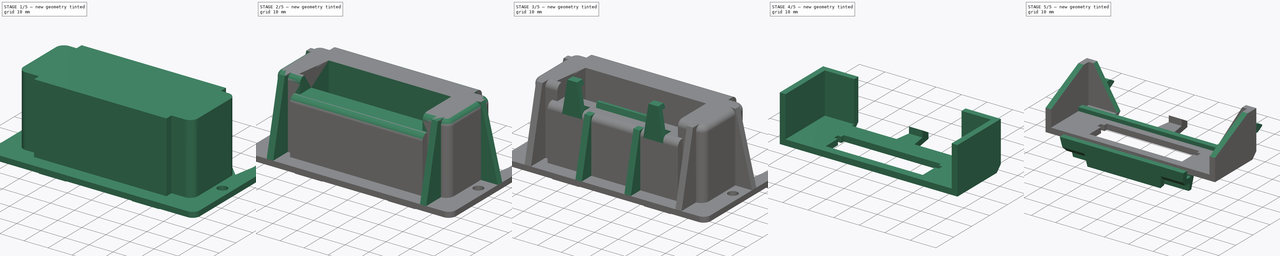
[diagram: build sequence overview — one tinted view per stage of 5, left to right]
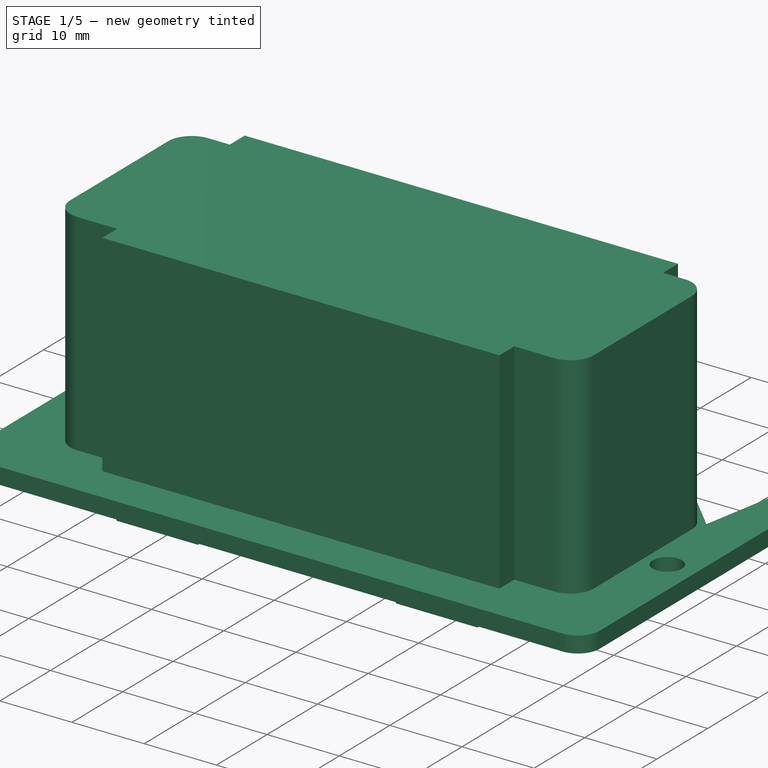
[diagram: stage 1 of 5 — iso view after this stage's code; geometry added in this stage tinted green]
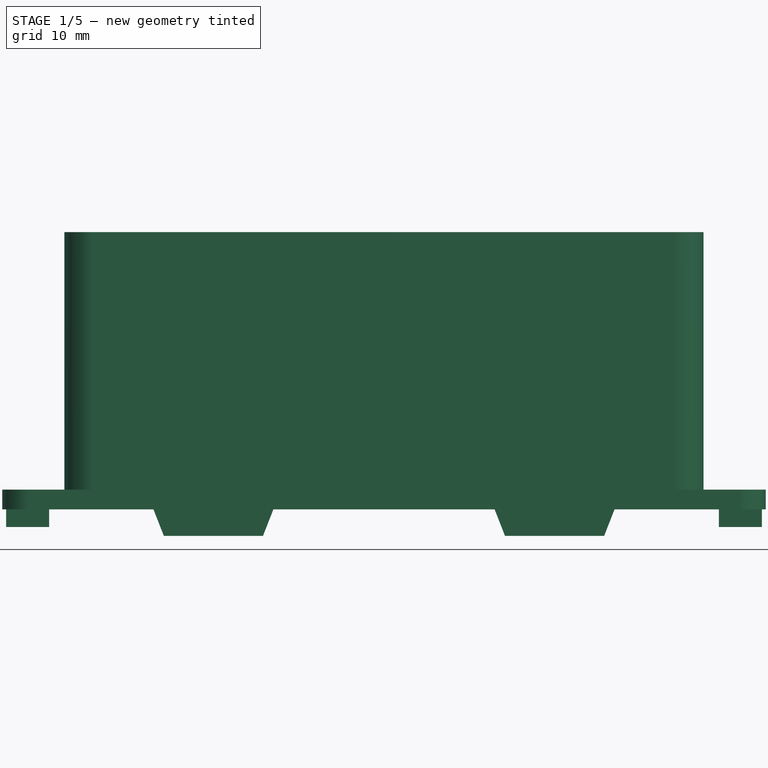
[diagram: stage 1 of 5 — front view after this stage's code; geometry added in this stage tinted green]
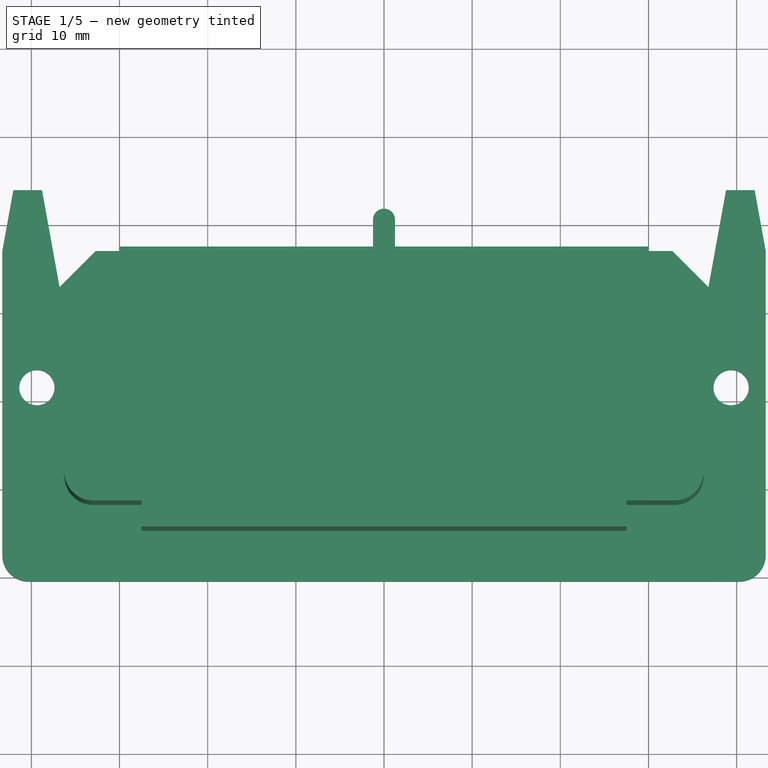
[diagram: stage 1 of 5 — top view after this stage's code; geometry added in this stage tinted green]
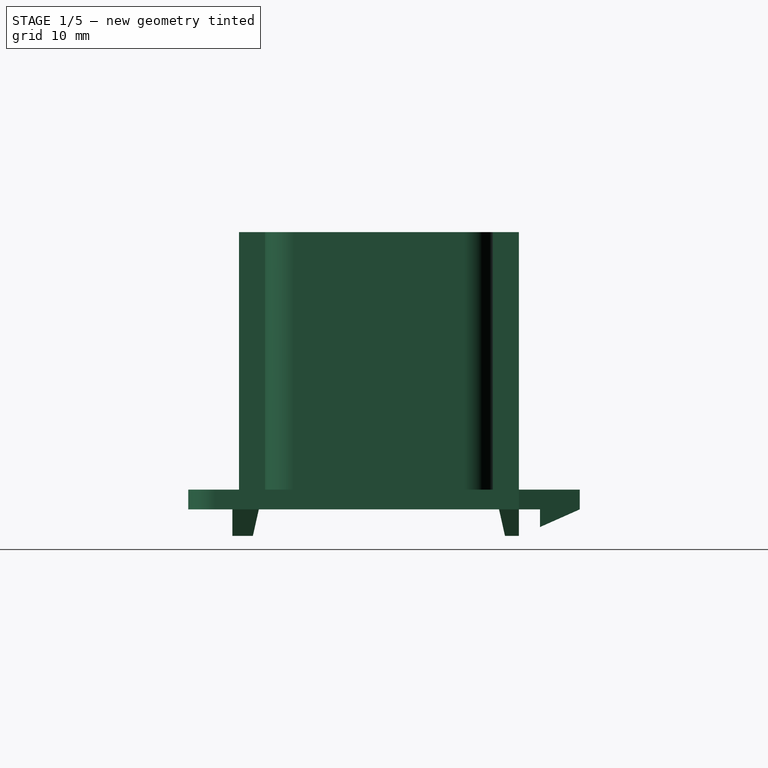
[diagram: stage 1 of 5 — right view after this stage's code; geometry added in this stage tinted green]
FCSTD DOCUMENT  (FreeCAD 1.0R38806 (Git))
Label: CartridgePort1200XL
License: Creative Commons Attribution 4.0
LicenseURL: https://creativecommons.org/licenses/by/4.0/
objects: Sketcher::SketchObject×35, PartDesign::Pad×26, PartDesign::Pocket×15, PartDesign::SubShapeBinder×8, PartDesign::Fillet×2, PartDesign::Body×2, App::Part×2
note: 209 computed .brp shape members not serialized (recipe doc carries the construction recipe); baked Part::Feature solids carry a one-line shape summary decoded from their .brp

FEATURE [Sketcher::SketchObject] Sketch
  ArcFitTolerance = 1e-06
  AttachmentSupport = -> [XY_Plane001]
  FullyConstrained = true
  MakeInternals = false
  MapMode = 5
  sketch-geometry (25):
    g0: LineSegment StartX=-43.3 StartY=-17.5 StartZ=0 EndX=-43.3 EndY=17 EndZ=0
    g1: LineSegment StartX=-43.3 StartY=17 StartZ=0 EndX=-42.0473 EndY=23.9 EndZ=0
    g2: LineSegment StartX=-42.0473 StartY=23.9 StartZ=0 EndX=-38.7973 EndY=23.9 EndZ=0
    g3: LineSegment StartX=-38.7973 StartY=23.9 StartZ=0 EndX=-36.8 EndY=12.8988 EndZ=0
    g4: LineSegment StartX=-36.8 StartY=12.8988 StartZ=0 EndX=-32.6988 EndY=17 EndZ=0
    g5: LineSegment StartX=-32.6988 StartY=17 StartZ=0 EndX=-1.25 EndY=17 EndZ=0
    g6: LineSegment StartX=-1.25 StartY=17 StartZ=0 EndX=-1.25 EndY=20.55 EndZ=0
    g7: ArcOfCircle CenterX=-5.23e-14 CenterY=20.55 CenterZ=0 NormalX=0 NormalY=0 NormalZ=1 AngleXU=0 Radius=1.25 StartAngle=5e-16 EndAngle=3.14159
    g8: LineSegment StartX=1.25 StartY=20.55 StartZ=0 EndX=1.25 EndY=17 EndZ=0
    g9: LineSegment StartX=1.25 StartY=17 StartZ=0 EndX=32.6988 EndY=17 EndZ=0
    g10: LineSegment StartX=32.6988 StartY=17 StartZ=0 EndX=36.8 EndY=12.8988 EndZ=0
    g11: LineSegment StartX=36.8 StartY=12.8988 StartZ=0 EndX=38.7973 EndY=23.9 EndZ=0
    g12: LineSegment StartX=38.7973 StartY=23.9 StartZ=0 EndX=42.0473 EndY=23.9 EndZ=0
    g13: LineSegment StartX=42.0473 StartY=23.9 StartZ=0 EndX=43.3 EndY=17 EndZ=0
    g14: LineSegment StartX=43.3 StartY=17 StartZ=0 EndX=43.3 EndY=-17.5 EndZ=0
    g15: ArcOfCircle CenterX=40.3 CenterY=-17.5 CenterZ=0 NormalX=0 NormalY=0 NormalZ=1 AngleXU=0 Radius=3 StartAngle=4.71239 EndAngle=6.28319
    g16: LineSegment StartX=40.3 StartY=-20.5 StartZ=0 EndX=-40.3 EndY=-20.5 EndZ=0
    g17: ArcOfCircle CenterX=-40.3 CenterY=-17.5 CenterZ=0 NormalX=0 NormalY=0 NormalZ=1 AngleXU=0 Radius=3 StartAngle=3.14159 EndAngle=4.71239
    g18: Circle CenterX=-39.375 CenterY=1.5 CenterZ=0 NormalX=0 NormalY=0 NormalZ=1 AngleXU=0 Radius=2
    g19: Circle CenterX=39.375 CenterY=1.5 CenterZ=0 NormalX=0 NormalY=0 NormalZ=1 AngleXU=0 Radius=2
    g20: GeomPoint X=0 Y=21.8 Z=0
    g21: GeomPoint X=-40.4223 Y=23.9 Z=0
    g22: GeomPoint X=-37.5446 Y=17 Z=0
    g23: GeomPoint X=-40.4223 Y=17 Z=0
    g24: LineSegment [constr] StartX=-40.4223 StartY=23.9 StartZ=0 EndX=-40.4223 EndY=17 EndZ=0
  constraints (66):
    c: Vertical(g0)
    c: Coincident(g0,g1)
    c: Coincident(g1,g2)
    c: Horizontal(g2)
    c: Coincident(g2,g3)
    c: Coincident(g3,g4)
    c: Coincident(g4,g5)
    c: Horizontal(g5)
    c: Coincident(g5,g6)
    c: Vertical(g6)
    c: Tangent(g6,g7) = 1.5708
    c: Coincident(g7,g8)
    c: Vertical(g8)
    c: Coincident(g8,g9)
    c: Horizontal(g9)
    c: Coincident(g9,g10)
    c: Coincident(g10,g11)
    c: Coincident(g11,g12)
    c: Horizontal(g12)
    c: Coincident(g12,g13)
    c: Coincident(g13,g14)
    c: Vertical(g14)
    c: Tangent(g14,g15) = 1.5708
    c: Coincident(g15,g16)
    c: Horizontal(g16)
    c: Tangent(g16,g17) = 1.5708
    c: Coincident(g17,g0)
    c: Horizontal(g7,g7)
    c: Horizontal(g5,g8)
    c: Horizontal(g2,g11)
    c: Horizontal(g3,g10)
    c: Horizontal(g0,g14)
    c: Horizontal(g0,g17)
    c: Vertical(g15,g15)
    c: Equal(g18,g19)
    c: Equal(g2,g12)
    c: Equal(g4,g10)
    c: Equal(g3,g11)
    c: Equal(g1,g13)
    c: Equal(g5,g9)
    c: Symmetric(g18,g19,g-2)
    c: Angle(g10,g-1) = 0.785398
    c: Distance(g2,g2) = 3.25
    c: Radius(g17) = 3
    c: Diameter(g18) = 4
    c: DistanceY(g16,g4) = 37.5
    c: Horizontal(g13,g9)
    c: Distance(g5,g8) = 2.5
    c: PointOnObject(g20,g7)
    c: PointOnObject(g20,g-2)
    c: DistanceY(g8,g20) = 4.8
    c: DistanceY(g15,g12) = 44.4
    c: Distance(g10) = 5.8
    c: DistanceX(g0,g14) = 86.6
    c: Symmetric(g0,g13,g-2)
    c: DistanceY(g15,g-1) = 20.5
    c: Symmetric(g2,g2,g21)
    c: PointOnObject(g22,g3)
    c: PointOnObject(g22,g5)
    c: Symmetric(g0,g22,g23)
    c: Coincident(g24,g21)
    c: Coincident(g24,g23)
    c: Vertical(g24)
    c: DistanceX(g0,g3) = 6.5
    c: DistanceX(g18,g19) = 78.75
    c: DistanceY(g15,g19) = 22
FEATURE [PartDesign::Pad] Pad
  Direction = (0,0,1)
  Length = 2.25
  Length2 = 10
  Profile = -> Sketch
  ReferenceAxis = -> Sketch [N_Axis]
  Suppressed = false
  Type = 0
FEATURE [Sketcher::SketchObject] Sketch001
  ArcFitTolerance = 1e-06
  AttachmentSupport = -> [Pad]
  ExternalGeometry = -> [Pad]
  FullyConstrained = true
  MakeInternals = false
  MapMode = 5
  Placement = pos=(0,0,0) rot=(1,0,0;3.14159rad)
  sketch-geometry (16):
    g0: LineSegment StartX=-34.5 StartY=8.55 StartZ=0 EndX=-34.5 EndY=-10.8 EndZ=0
    g1: ArcOfCircle CenterX=-33 CenterY=-10.8 CenterZ=0 NormalX=0 NormalY=0 NormalZ=1 AngleXU=0 Radius=1.5 StartAngle=3.14159 EndAngle=4.71239
    g2: LineSegment StartX=-33 StartY=-12.3 StartZ=0 EndX=-28.55 EndY=-12.3 EndZ=0
    g3: LineSegment StartX=-28.55 StartY=-12.3 StartZ=0 EndX=-28.55 EndY=-14.75 EndZ=0
    g4: LineSegment StartX=-28.55 StartY=-14.75 StartZ=0 EndX=28.55 EndY=-14.75 EndZ=0
    g5: LineSegment StartX=28.55 StartY=-14.75 StartZ=0 EndX=28.55 EndY=-12.3 EndZ=0
    g6: LineSegment StartX=28.55 StartY=-12.3 StartZ=0 EndX=33 EndY=-12.3 EndZ=0
    g7: ArcOfCircle CenterX=33 CenterY=-10.8 CenterZ=0 NormalX=0 NormalY=0 NormalZ=1 AngleXU=0 Radius=1.5 StartAngle=4.71239 EndAngle=6.28319
    g8: LineSegment StartX=34.5 StartY=-10.8 StartZ=0 EndX=34.5 EndY=8.55 EndZ=0
    g9: ArcOfCircle CenterX=33 CenterY=8.55 CenterZ=0 NormalX=0 NormalY=0 NormalZ=1 AngleXU=0 Radius=1.5 StartAngle=5e-16 EndAngle=1.5708
    g10: LineSegment StartX=33 StartY=10.05 StartZ=0 EndX=26.6 EndY=10.05 EndZ=0
    g11: LineSegment StartX=26.6 StartY=10.05 StartZ=0 EndX=26.6 EndY=12.5 EndZ=0
    g12: LineSegment StartX=26.6 StartY=12.5 StartZ=0 EndX=-26.6 EndY=12.5 EndZ=0
    g13: LineSegment StartX=-26.6 StartY=12.5 StartZ=0 EndX=-26.6 EndY=10.05 EndZ=0
    g14: LineSegment StartX=-26.6 StartY=10.05 StartZ=0 EndX=-33 EndY=10.05 EndZ=0
    g15: ArcOfCircle CenterX=-33 CenterY=8.55 CenterZ=0 NormalX=0 NormalY=0 NormalZ=1 AngleXU=0 Radius=1.5 StartAngle=1.5708 EndAngle=3.14159
  constraints (44):
    c: Vertical(g0)
    c: Tangent(g0,g1) = -1.5708
    c: Tangent(g1,g2) = -1.5708
    c: Coincident(g2,g3)
    c: Vertical(g3)
    c: Coincident(g3,g4)
    c: Coincident(g4,g5)
    c: Vertical(g5)
    c: Coincident(g5,g6)
    c: Horizontal(g6)
    c: Tangent(g6,g7) = -1.5708
    c: Coincident(g7,g8)
    c: Vertical(g8)
    c: Tangent(g8,g9) = -1.5708
    c: Coincident(g9,g10)
    c: Horizontal(g10)
    c: Coincident(g10,g11)
    c: Vertical(g11)
    c: Coincident(g11,g12)
    c: Coincident(g12,g13)
    c: Vertical(g13)
    c: Coincident(g13,g14)
    c: Horizontal(g14)
    c: Tangent(g14,g15) = -1.5708
    c: Coincident(g15,g0)
    c: Equal(g15,g1)
    c: Equal(g1,g7)
    c: Equal(g7,g9)
    c: Horizontal(g2)
    c: Symmetric(g12,g11,g-2)
    c: Symmetric(g0,g8,g-2)
    c: Horizontal(g4)
    c: Symmetric(g2,g5,g-2)
    c: Radius(g1) = 1.5
    c: DistanceY(g3,g12) = 27.25
    c: Vertical(g9,g9)
    c: Horizontal(g15,g0)
    c: Horizontal(g7,g7)
    c: DistanceX(g0,g8) = 69
    c: DistanceY(g3,g13) = 24.8
    c: Equal(g13,g3)
    c: DistanceX(g12,g12) = 53.2
    c: DistanceX(g4,g4) = 57.1
    c: DistanceY(g12,g-3) = 8
FEATURE [Sketcher::SketchObject] Sketch002
  ArcFitTolerance = 1e-06
  AttachmentSupport = -> [Pad]
  ExternalGeometry = -> [Sketch001]
  FullyConstrained = true
  MakeInternals = false
  MapMode = 5
  Placement = pos=(0,0,2.25) rot=(0,0,1;0rad)
  sketch-geometry (16):
    g0: LineSegment StartX=-30 StartY=17 StartZ=0 EndX=30 EndY=17 EndZ=0
    g1: LineSegment StartX=30 StartY=17 StartZ=0 EndX=30 EndY=14.05 EndZ=0
    g2: LineSegment StartX=30 StartY=14.05 StartZ=0 EndX=33 EndY=14.05 EndZ=0
    g3: ArcOfCircle CenterX=33 CenterY=10.8 CenterZ=0 NormalX=0 NormalY=0 NormalZ=1 AngleXU=0 Radius=3.25 StartAngle=1e-16 EndAngle=1.5708
    g4: LineSegment StartX=36.25 StartY=10.8 StartZ=0 EndX=36.25 EndY=-8.55 EndZ=0
    g5: ArcOfCircle CenterX=33 CenterY=-8.55 CenterZ=0 NormalX=0 NormalY=0 NormalZ=1 AngleXU=0 Radius=3.25 StartAngle=4.71239 EndAngle=6.28319
    g6: LineSegment StartX=33 StartY=-11.8 StartZ=0 EndX=27.5 EndY=-11.8 EndZ=0
    g7: LineSegment StartX=27.5 StartY=-11.8 StartZ=0 EndX=27.5 EndY=-14.75 EndZ=0
    g8: LineSegment StartX=27.5 StartY=-14.75 StartZ=0 EndX=-27.5 EndY=-14.75 EndZ=0
    g9: LineSegment StartX=-27.5 StartY=-14.75 StartZ=0 EndX=-27.5 EndY=-11.8 EndZ=0
    g10: LineSegment StartX=-27.5 StartY=-11.8 StartZ=0 EndX=-33 EndY=-11.8 EndZ=0
    g11: ArcOfCircle CenterX=-33 CenterY=-8.55 CenterZ=0 NormalX=0 NormalY=0 NormalZ=1 AngleXU=0 Radius=3.25 StartAngle=3.14159 EndAngle=4.71239
    g12: LineSegment StartX=-36.25 StartY=-8.55 StartZ=0 EndX=-36.25 EndY=10.8 EndZ=0
    g13: ArcOfCircle CenterX=-33 CenterY=10.8 CenterZ=0 NormalX=0 NormalY=0 NormalZ=1 AngleXU=0 Radius=3.25 StartAngle=1.5708 EndAngle=3.14159
    g14: LineSegment StartX=-33 StartY=14.05 StartZ=0 EndX=-30 EndY=14.05 EndZ=0
    g15: LineSegment StartX=-30 StartY=14.05 StartZ=0 EndX=-30 EndY=17 EndZ=0
  constraints (43):
    c: Horizontal(g0)
    c: Coincident(g0,g1)
    c: Vertical(g1)
    c: Coincident(g1,g2)
    c: Horizontal(g2)
    c: Tangent(g2,g3) = 1.5708
    c: Coincident(g3,g4)
    c: Vertical(g4)
    c: Tangent(g4,g5) = 1.5708
    c: Coincident(g5,g6)
    c: Horizontal(g6)
    c: Coincident(g6,g7)
    c: Vertical(g7)
    c: Coincident(g7,g8)
    c: Horizontal(g8)
    c: Coincident(g8,g9)
    c: Vertical(g9)
    c: Coincident(g9,g10)
    c: Horizontal(g10)
    c: Tangent(g10,g11) = 1.5708
    c: Coincident(g11,g12)
    c: Vertical(g12)
    c: Tangent(g12,g13) = 1.5708
    c: Coincident(g13,g14)
    c: Horizontal(g14)
    c: Coincident(g14,g15)
    c: Coincident(g15,g0)
    c: Vertical(g15)
    c: Coincident(g3,g-4)
    c: Coincident(g13,g-3)
    c: Coincident(g11,g-6)
    c: Coincident(g5,g-5)
    c: Vertical(g13,g13)
    c: Vertical(g5,g5)
    c: Horizontal(g11,g11)
    c: DistanceX(g11,g4) = 72.5
    c: Symmetric(g12,g3,g-2)
    c: DistanceY(g7,g0) = 31.75
    c: Equal(g1,g7)
    c: Equal(g10,g6)
    c: Equal(g14,g2)
    c: DistanceX(g0,g0) = 60
    c: DistanceX(g8,g8) = 55
FEATURE [PartDesign::Pad] Pad001
  BaseFeature = -> Pad
  Direction = (0,0,1)
  Length = 29.2
  Length2 = 10
  Profile = -> Sketch002
  ReferenceAxis = -> Sketch002 [N_Axis]
  Suppressed = false
  Type = 0
FEATURE [PartDesign::Pocket] Pocket
  BaseFeature = -> Pad001
  Direction = (0,0,1)
  Length = 29.5
  Length2 = 5
  Profile = -> Sketch001
  ReferenceAxis = -> Sketch001 [N_Axis]
  Refine = true
  Suppressed = false
  Type = 0
FEATURE [Sketcher::SketchObject] Sketch003
  ArcFitTolerance = 1e-06
  AttachmentOffset = pos=(0,0,35) rot=(0,0,1;0rad)
  AttachmentSupport = -> [YZ_Plane001]
  ExternalGeometry = -> [Pocket]
  FullyConstrained = true
  MakeInternals = false
  MapMode = 5
  Placement = pos=(35,0,0) rot=(0.57735,0.57735,0.57735;2.0944rad)
  sketch-geometry (3):
    g0: LineSegment StartX=23.9 StartY=0 StartZ=0 EndX=19.4 EndY=-2 EndZ=0
    g1: LineSegment StartX=19.4 StartY=-2 StartZ=0 EndX=19.4 EndY=0 EndZ=0
    g2: LineSegment StartX=19.4 StartY=0 StartZ=0 EndX=23.9 EndY=0 EndZ=0
  constraints (8):
    c: Coincident(g-3,g0)
    c: Coincident(g0,g1)
    c: PointOnObject(g1,g-1)
    c: Vertical(g1)
    c: Coincident(g1,g2)
    c: Coincident(g2,g0)
    c: DistanceX(g2,g2) = 4.5
    c: Distance(g1,g1) = 2
FEATURE [PartDesign::SubShapeBinder] Binder
  BindCopyOnChange = 0
  BindMode = 0
  ClaimChildren = false
  Context = -> Part [Body.Binder.]
  Fuse = false
  MakeFace = true
  OffsetFill = false
  OffsetIntersection = false
  OffsetJoinType = 0
  OffsetOpenResult = false
  PartialLoad = false
  Placement = pos=(-70,0,0) rot=(0,0,1;0rad)
  Relative = true
  Support = -> [Sketch003]
  _Version = 2
FEATURE [PartDesign::Pad] Pad002
  BaseFeature = -> Pocket
  Direction = (1,0,0)
  Length = 10
  Length2 = 10
  Profile = -> Sketch003
  ReferenceAxis = -> Sketch003 [N_Axis]
  Suppressed = false
  Type = 0
FEATURE [PartDesign::Pad] Pad003
  BaseFeature = -> Pad002
  Direction = (1,0,0)
  Length = 10
  Length2 = 10
  Profile = -> Binder
  Reversed = true
  Suppressed = false
  Type = 0
FEATURE [Sketcher::SketchObject] Sketch004
  ArcFitTolerance = 1e-06
  AttachmentSupport = -> [Pad003]
  ExternalGeometry = -> [Pad003]
  FullyConstrained = true
  MakeInternals = false
  MapMode = 5
  Placement = pos=(0,0,2.25) rot=(0,0,1;0rad)
  sketch-geometry (14):
    g0: LineSegment StartX=-43.3 StartY=17 StartZ=0 EndX=-48 EndY=17 EndZ=0
    g1: LineSegment StartX=-48 StartY=17 StartZ=0 EndX=-48 EndY=27 EndZ=0
    g2: LineSegment StartX=-48 StartY=27 StartZ=0 EndX=48 EndY=27 EndZ=0
    g3: LineSegment StartX=48 StartY=27 StartZ=0 EndX=48 EndY=17 EndZ=0
    g4: LineSegment StartX=48 StartY=17 StartZ=0 EndX=43.3 EndY=17 EndZ=0
    g5: LineSegment StartX=43.3 StartY=17 StartZ=0 EndX=42.0473 EndY=23.9 EndZ=0
    g6: LineSegment StartX=42.0473 StartY=23.9 StartZ=0 EndX=38.7973 EndY=23.9 EndZ=0
    g7: LineSegment StartX=38.7973 StartY=23.9 StartZ=0 EndX=36.8 EndY=12.8988 EndZ=0
    g8: LineSegment StartX=36.8 StartY=12.8988 StartZ=0 EndX=28.5 EndY=25 EndZ=0
    g9: LineSegment StartX=28.5 StartY=25 StartZ=0 EndX=-28.5 EndY=25 EndZ=0
    g10: LineSegment StartX=-28.5 StartY=25 StartZ=0 EndX=-36.8 EndY=12.8988 EndZ=0
    g11: LineSegment StartX=-36.8 StartY=12.8988 StartZ=0 EndX=-38.7973 EndY=23.9 EndZ=0
    g12: LineSegment StartX=-38.7973 StartY=23.9 StartZ=0 EndX=-42.0473 EndY=23.9 EndZ=0
    g13: LineSegment StartX=-42.0473 StartY=23.9 StartZ=0 EndX=-43.3 EndY=17 EndZ=0
  constraints (32):
    c: Coincident(g-3,g0)
    c: Horizontal(g0)
    c: Coincident(g0,g1)
    c: Vertical(g1)
    c: Coincident(g1,g2)
    c: Coincident(g2,g3)
    c: Vertical(g3)
    c: Coincident(g3,g4)
    c: Coincident(g4,g-6)
    c: Horizontal(g4)
    c: Coincident(g4,g5)
    c: Coincident(g5,g-6)
    c: Coincident(g5,g6)
    c: Coincident(g6,g-5)
    c: Coincident(g6,g7)
    c: Coincident(g7,g-5)
    c: Coincident(g7,g8)
    c: Coincident(g8,g9)
    c: Coincident(g9,g10)
    c: Coincident(g10,g-4)
    c: Coincident(g10,g11)
    c: Coincident(g11,g-4)
    c: Coincident(g11,g12)
    c: Coincident(g12,g-3)
    c: Coincident(g12,g13)
    c: Coincident(g13,g0)
    c: Symmetric(g9,g8,g-2)
    c: Symmetric(g1,g2,g-2)
    c: DistanceX(g9,g9) = 57
    c: DistanceX(g2,g2) = 96
    c: DistanceY(g1,g1) = 10
    c: DistanceY(g8,g2) = 2
FEATURE [PartDesign::Pocket] Pocket001
  BaseFeature = -> Pad003
  Direction = (0,0,-1)
  Length = 5
  Length2 = 5
  Profile = -> Sketch004
  ReferenceAxis = -> Sketch004 [N_Axis]
  Refine = true
  Suppressed = false
  Type = 1
FEATURE [Sketcher::SketchObject] Sketch005
  ArcFitTolerance = 1e-06
  AttachmentSupport = -> [Pocket001]
  ExternalGeometry = -> [Pocket001]
  FullyConstrained = true
  MakeInternals = false
  MapMode = 5
  Placement = pos=(0,14.75,0) rot=(1,0,0;1.5708rad)
  sketch-geometry (12):
    g0: LineSegment StartX=-26.15 StartY=-4.6e-15 StartZ=0 EndX=-24.975 EndY=-3 EndZ=0
    g1: LineSegment StartX=-24.975 StartY=-3 StartZ=0 EndX=-13.725 EndY=-3 EndZ=0
    g2: LineSegment StartX=-13.725 StartY=-3 StartZ=0 EndX=-12.55 EndY=-4.4e-15 EndZ=0
    g3: LineSegment StartX=-12.55 StartY=-4.4e-15 StartZ=0 EndX=-26.15 EndY=-4.6e-15 EndZ=0
    g4: LineSegment StartX=12.55 StartY=-4.6e-15 StartZ=0 EndX=13.725 EndY=-3 EndZ=0
    g5: LineSegment StartX=13.725 StartY=-3 StartZ=0 EndX=24.975 EndY=-3 EndZ=0
    g6: LineSegment StartX=24.975 StartY=-3 StartZ=0 EndX=26.15 EndY=-4.4e-15 EndZ=0
    g7: LineSegment StartX=26.15 StartY=-4.4e-15 StartZ=0 EndX=12.55 EndY=-4.6e-15 EndZ=0
    g8: GeomPoint X=-19.35 Y=-1.288e-13 Z=0
    g9: GeomPoint X=19.35 Y=-1.428e-13 Z=0
    g10: GeomPoint X=-19.35 Y=-3 Z=0
    g11: GeomPoint X=19.35 Y=-3 Z=0
  constraints (27):
    c: PointOnObject(g0,g-3)
    c: Coincident(g0,g1)
    c: Horizontal(g1)
    c: Coincident(g1,g2)
    c: PointOnObject(g2,g-3)
    c: Coincident(g2,g3)
    c: Coincident(g3,g0)
    c: Coincident(g4,g5)
    c: Horizontal(g5)
    c: Coincident(g5,g6)
    c: PointOnObject(g6,g-3)
    c: Coincident(g6,g7)
    c: Coincident(g7,g4)
    c: Symmetric(g2,g4,g-2)
    c: Equal(g3,g7)
    c: Equal(g1,g5)
    c: Symmetric(g3,g3,g8)
    c: Symmetric(g7,g7,g9)
    c: Symmetric(g1,g1,g10)
    c: Symmetric(g5,g5,g11)
    c: Vertical(g8,g10)
    c: Vertical(g9,g11)
    c: DistanceX(g3,g3) = 13.6
    c: DistanceX(g1,g1) = 11.25
    c: DistanceY(g1,g2) = 3
    c: Horizontal(g1,g4)
    c: DistanceX(g0,g6) = 52.3
FEATURE [PartDesign::Pad] Pad004
  BaseFeature = -> Pocket001
  Direction = (0,-1,2e-16)
  Length = 10
  Length2 = 10
  Profile = -> Sketch005
  ReferenceAxis = -> Sketch005 [N_Axis]
  Reversed = true
  Suppressed = false
  Type = 3
  UpToFace = -> Pocket001 [Face9]
FEATURE [Sketcher::SketchObject] Sketch006
  ArcFitTolerance = 1e-06
  AttachmentSupport = -> [Pad004]
  ExternalGeometry = -> [Sketch005]
  FullyConstrained = true
  MakeInternals = false
  MapMode = 5
  Placement = pos=(0,-12.5,0) rot=(0,0.707107,0.707107;3.14159rad)
  sketch-geometry (8):
    g0: LineSegment StartX=-26.15 StartY=0 StartZ=0 EndX=-24.975 EndY=-3 EndZ=0
    g1: LineSegment StartX=-24.975 StartY=-3 StartZ=0 EndX=-13.725 EndY=-3 EndZ=0
    g2: LineSegment StartX=-13.725 StartY=-3 StartZ=0 EndX=-12.55 EndY=0 EndZ=0
    g3: LineSegment StartX=-12.55 StartY=0 StartZ=0 EndX=-26.15 EndY=0 EndZ=0
    g4: LineSegment StartX=12.55 StartY=0 StartZ=0 EndX=13.725 EndY=-3 EndZ=0
    g5: LineSegment StartX=13.725 StartY=-3 StartZ=0 EndX=24.975 EndY=-3 EndZ=0
    g6: LineSegment StartX=24.975 StartY=-3 StartZ=0 EndX=26.15 EndY=0 EndZ=0
    g7: LineSegment StartX=26.15 StartY=0 StartZ=0 EndX=12.55 EndY=0 EndZ=0
  constraints (16):
    c: Coincident(g-3,g0)
    c: Coincident(g0,g-3)
    c: Coincident(g0,g1)
    c: Coincident(g1,g-4)
    c: Coincident(g1,g2)
    c: Coincident(g2,g-4)
    c: Coincident(g2,g3)
    c: Coincident(g3,g0)
    c: Coincident(g-5,g4)
    c: Coincident(g4,g-5)
    c: Coincident(g4,g5)
    c: Coincident(g5,g-6)
    c: Coincident(g5,g6)
    c: Coincident(g6,g-6)
    c: Coincident(g6,g7)
    c: Coincident(g7,g4)
FEATURE [PartDesign::Pad] Pad005
  BaseFeature = -> Pad004
  Direction = (0,1,-2e-16)
  Length = 3
  Length2 = 10
  Profile = -> Sketch006
  ReferenceAxis = -> Sketch006 [N_Axis]
  Reversed = true
  Suppressed = false
  Type = 0
FEATURE [Sketcher::SketchObject] Sketch007
  ArcFitTolerance = 1e-06
  AttachmentSupport = -> [YZ_Plane]
  ExternalGeometry = -> [Pad005]
  FullyConstrained = true
  MakeInternals = false
  MapMode = 5
  Placement = pos=(0,0,0) rot=(0.57735,0.57735,0.57735;2.0944rad)
  sketch-geometry (6):
    g0: LineSegment StartX=-12.5 StartY=0 StartZ=0 EndX=-13.175 EndY=-3 EndZ=0
    g1: LineSegment StartX=-13.175 StartY=-3 StartZ=0 EndX=15.425 EndY=-3 EndZ=0
    g2: LineSegment StartX=15.425 StartY=-3 StartZ=0 EndX=14.75 EndY=-4.4e-15 EndZ=0
    g3: LineSegment StartX=14.75 StartY=-4.4e-15 StartZ=0 EndX=-12.5 EndY=0 EndZ=0
    g4: GeomPoint X=1.125 Y=-2.2e-15 Z=0
    g5: GeomPoint X=1.125 Y=-3 Z=0
  constraints (12):
    c: Coincident(g-3,g0)
    c: Coincident(g0,g1)
    c: Horizontal(g1)
    c: Coincident(g1,g2)
    c: Coincident(g2,g-4)
    c: Coincident(g2,g3)
    c: Coincident(g3,g0)
    c: Symmetric(g3,g3,g4)
    c: Symmetric(g1,g1,g5)
    c: Vertical(g4,g5)
    c: PointOnObject(g-3,g1)
    c: DistanceX(g1,g1) = 28.6
FEATURE [PartDesign::Pocket] Pocket002
  BaseFeature = -> Pad005
  Direction = (-1,0,0)
  Length = 5
  Length2 = 5
  Midplane = true
  Profile = -> Sketch007
  ReferenceAxis = -> Sketch007 [N_Axis]
  Refine = true
  Suppressed = false
  Type = 1
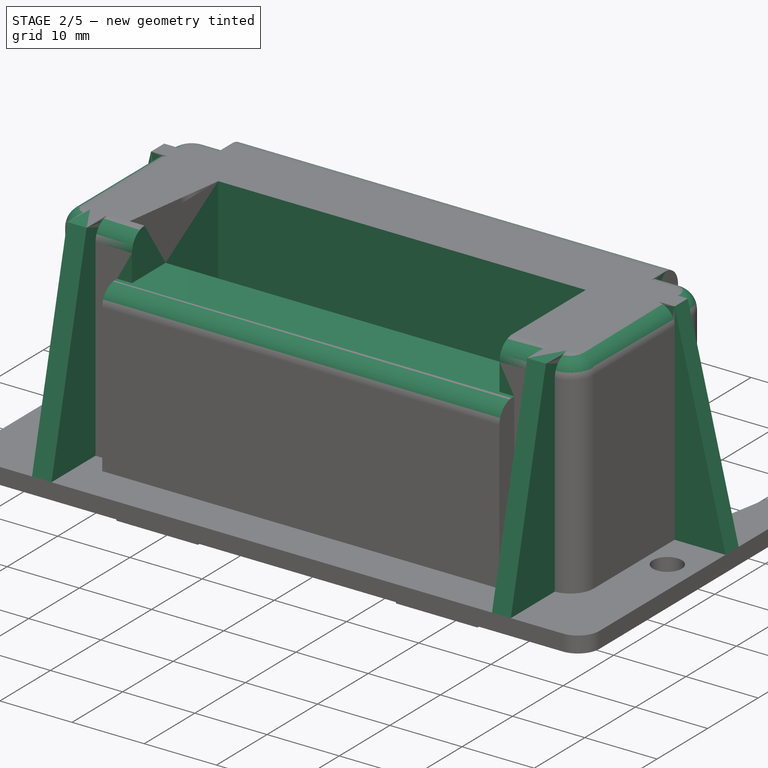
[diagram: stage 2 of 5 — iso view after this stage's code; geometry added in this stage tinted green]
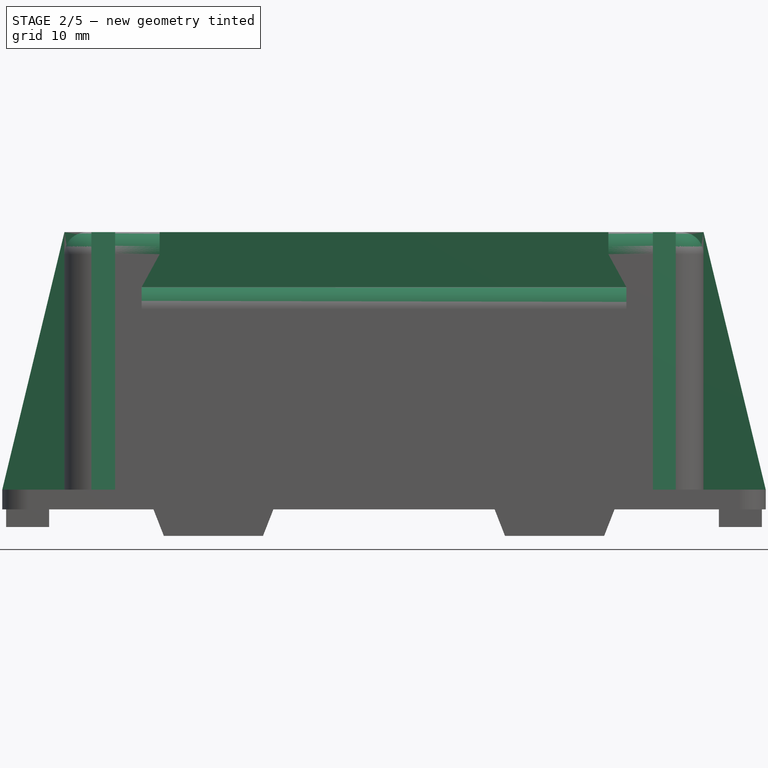
[diagram: stage 2 of 5 — front view after this stage's code; geometry added in this stage tinted green]
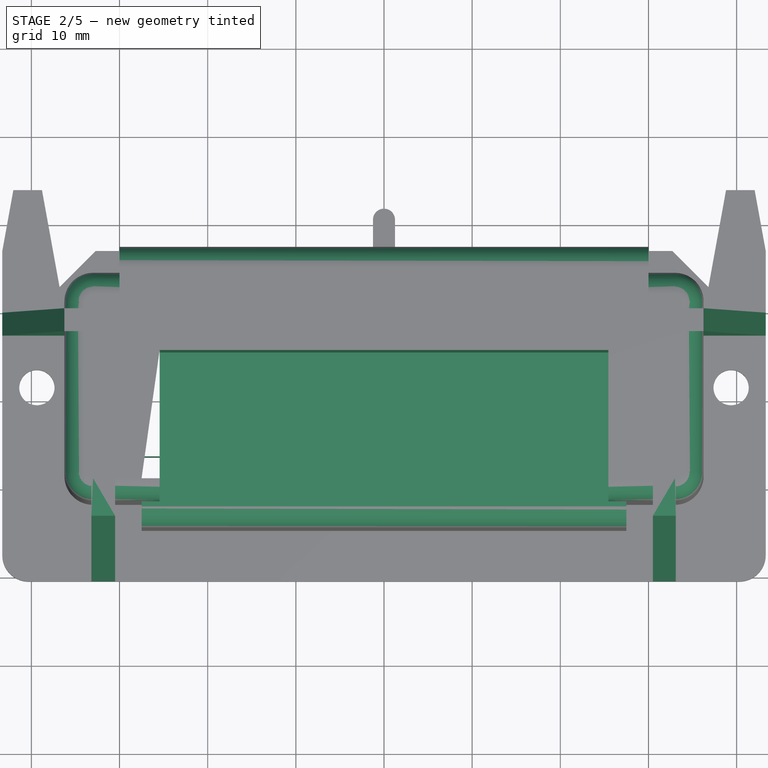
[diagram: stage 2 of 5 — top view after this stage's code; geometry added in this stage tinted green]
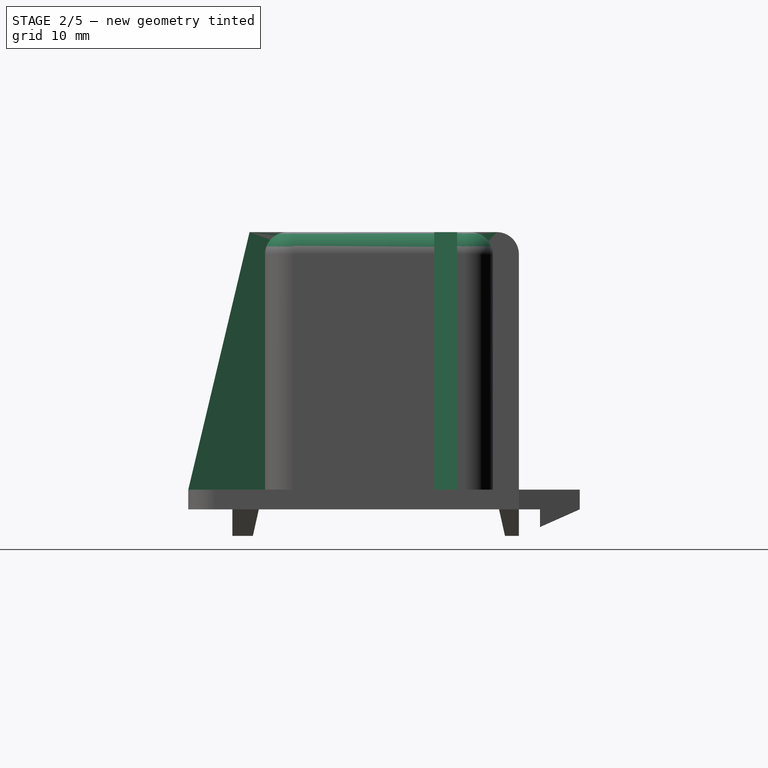
[diagram: stage 2 of 5 — right view after this stage's code; geometry added in this stage tinted green]
FEATURE [PartDesign::Fillet] Fillet
  Base = -> Pocket002 [Edge76,Edge105,Edge84,Edge68]
  BaseFeature = -> Pocket002
  Radius = 2.5
  SupportTransform = false
  Suppressed = false
  UseAllEdges = false
FEATURE [Sketcher::SketchObject] Sketch008
  ArcFitTolerance = 1e-06
  AttachmentOffset = pos=(0,0,-10) rot=(0,0,1;0rad)
  AttachmentSupport = -> [XZ_Plane]
  ExternalGeometry = -> [Pocket002,Fillet]
  FullyConstrained = true
  MakeInternals = false
  MapMode = 5
  Placement = pos=(0,10,-2.2e-15) rot=(1,0,0;1.5708rad)
  sketch-geometry (10):
    g0: LineSegment StartX=-36.25 StartY=2.25 StartZ=0 EndX=-43.3 EndY=2.25 EndZ=0
    g1: LineSegment StartX=-43.3 StartY=2.25 StartZ=0 EndX=-36.25 EndY=31.45 EndZ=0
    g2: LineSegment StartX=36.25 StartY=2.25 StartZ=0 EndX=43.3 EndY=2.25 EndZ=0
    g3: LineSegment StartX=43.3 StartY=2.25 StartZ=0 EndX=36.25 EndY=31.45 EndZ=0
    g4: LineSegment StartX=-36.25 StartY=28.95 StartZ=0 EndX=-36.25 EndY=2.25 EndZ=0
    g5: LineSegment StartX=36.25 StartY=28.95 StartZ=0 EndX=36.25 EndY=2.25 EndZ=0
    g6: LineSegment StartX=-36.25 StartY=31.45 StartZ=0 EndX=-33.75 EndY=31.45 EndZ=0
    g7: LineSegment StartX=-33.75 StartY=31.45 StartZ=0 EndX=-36.25 EndY=28.95 EndZ=0
    g8: LineSegment StartX=36.25 StartY=31.45 StartZ=0 EndX=33.75 EndY=31.45 EndZ=0
    g9: LineSegment StartX=33.75 StartY=31.45 StartZ=0 EndX=36.25 EndY=28.95 EndZ=0
  constraints (22):
    c: Coincident(g-3,g6)
    c: Coincident(g4,g-3)
    c: Coincident(g4,g0)
    c: Coincident(g0,g-6)
    c: Coincident(g0,g1)
    c: Coincident(g1,g6)
    c: Coincident(g-4,g8)
    c: Coincident(g5,g-4)
    c: Coincident(g5,g2)
    c: Coincident(g2,g-5)
    c: Coincident(g2,g3)
    c: Coincident(g3,g8)
    c: Coincident(g7,g4)
    c: Coincident(g9,g5)
    c: Coincident(g6,g7)
    c: Coincident(g8,g9)
    c: Coincident(g6,g-7)
    c: Coincident(g8,g-8)
    c: Angle(g6,g7) = 0.785398
    c: PointOnObject(g4,g-3)
    c: PointOnObject(g5,g-4)
    c: Horizontal(g4,g5)
FEATURE [PartDesign::Pad] Pad006
  BaseFeature = -> Fillet
  Direction = (0,-1,2e-16)
  Length = 2.6
  Length2 = 10
  Profile = -> Sketch008
  ReferenceAxis = -> Sketch008 [N_Axis]
  Refine = true
  Suppressed = false
  Type = 0
FEATURE [Sketcher::SketchObject] Sketch009
  ArcFitTolerance = 1e-06
  AttachmentOffset = pos=(0,0,30.5) rot=(0,0,1;0rad)
  AttachmentSupport = -> [YZ_Plane]
  ExternalGeometry = -> [Pad006]
  FullyConstrained = true
  MakeInternals = false
  MapMode = 5
  Placement = pos=(30.5,0,0) rot=(0.57735,0.57735,0.57735;2.0944rad)
  sketch-geometry (5):
    g0: LineSegment StartX=-20.5 StartY=2.25 StartZ=0 EndX=-11.8 EndY=2.25 EndZ=0
    g1: LineSegment StartX=-11.8 StartY=2.25 StartZ=0 EndX=-11.8 EndY=28.95 EndZ=0
    g2: LineSegment StartX=-11.8 StartY=28.95 StartZ=0 EndX=-9.3 EndY=31.45 EndZ=0
    g3: LineSegment StartX=-9.3 StartY=31.45 StartZ=0 EndX=-13.55 EndY=31.45 EndZ=0
    g4: LineSegment StartX=-13.55 StartY=31.45 StartZ=0 EndX=-20.5 EndY=2.25 EndZ=0
  constraints (11):
    c: Coincident(g0,g-5)
    c: Coincident(g0,g-4)
    c: Coincident(g0,g1)
    c: Coincident(g1,g-4)
    c: Coincident(g1,g2)
    c: Coincident(g2,g-3)
    c: Coincident(g2,g3)
    c: Horizontal(g3)
    c: Coincident(g3,g4)
    c: Coincident(g4,g0)
    c: DistanceX(g3,g1) = 1.75
FEATURE [PartDesign::SubShapeBinder] Binder001
  BindCopyOnChange = 0
  BindMode = 0
  ClaimChildren = false
  Context = -> Part [Body.Binder001.]
  Fuse = false
  MakeFace = true
  OffsetFill = false
  OffsetIntersection = false
  OffsetJoinType = 0
  OffsetOpenResult = false
  PartialLoad = false
  Placement = pos=(-61,0,0) rot=(0,0,1;0rad)
  Relative = true
  Support = -> [Sketch009]
  _Version = 2
FEATURE [PartDesign::Pad] Pad007
  BaseFeature = -> Pad006
  Direction = (1,0,0)
  Length = 2.6
  Length2 = 10
  Profile = -> Sketch009
  ReferenceAxis = -> Sketch009 [N_Axis]
  Refine = true
  Suppressed = false
  Type = 0
FEATURE [PartDesign::Pad] Pad008
  BaseFeature = -> Pad007
  Direction = (1,0,0)
  Length = 2.7
  Length2 = 10
  Profile = -> Binder001
  Refine = true
  Reversed = true
  Suppressed = false
  Type = 0
FEATURE [Sketcher::SketchObject] Sketch010
  ArcFitTolerance = 1e-06
  AttachmentSupport = -> [YZ_Plane]
  ExternalGeometry = -> [Pad008]
  FullyConstrained = true
  MakeInternals = false
  MapMode = 5
  Placement = pos=(0,0,0) rot=(0.57735,0.57735,0.57735;2.0944rad)
  sketch-geometry (6):
    g0: LineSegment StartX=-6.65 StartY=13.5 StartZ=0 EndX=7.1 EndY=13.5 EndZ=0
    g1: LineSegment StartX=7.1 StartY=13.5 StartZ=0 EndX=7.1 EndY=29.5 EndZ=0
    g2: LineSegment StartX=7.1 StartY=29.5 StartZ=0 EndX=-12.5 EndY=29.5 EndZ=0
    g3: LineSegment StartX=-12.5 StartY=29.5 StartZ=0 EndX=-12.5 EndY=22.5 EndZ=0
    g4: LineSegment StartX=-12.5 StartY=22.5 StartZ=0 EndX=-6.65 EndY=22.5 EndZ=0
    g5: LineSegment StartX=-6.65 StartY=22.5 StartZ=0 EndX=-6.65 EndY=13.5 EndZ=0
  constraints (18):
    c: Horizontal(g0)
    c: Coincident(g0,g1)
    c: Vertical(g1)
    c: Coincident(g1,g2)
    c: Horizontal(g2)
    c: Coincident(g2,g3)
    c: Vertical(g3)
    c: Coincident(g3,g4)
    c: Horizontal(g4)
    c: Coincident(g4,g5)
    c: Coincident(g5,g0)
    c: Vertical(g5)
    c: PointOnObject(g2,g-3)
    c: PointOnObject(g1,g-4)
    c: DistanceX(g2,g2) = 19.6
    c: DistanceX(g0,g0) = 13.75
    c: DistanceY(g1,g1) = 16
    c: DistanceY(g5,g5) = 9
FEATURE [PartDesign::Pad] Pad009
  BaseFeature = -> Pad008
  Direction = (1,0,0)
  Length = 54.9
  Length2 = 10
  Midplane = true
  Profile = -> Sketch010
  ReferenceAxis = -> Sketch010 [N_Axis]
  Refine = true
  Suppressed = false
  Type = 0
FEATURE [Sketcher::SketchObject] Sketch011
  ArcFitTolerance = 1e-06
  AttachmentSupport = -> [YZ_Plane]
  ExternalGeometry = -> [Pad009]
  FullyConstrained = true
  MakeInternals = false
  MapMode = 5
  Placement = pos=(0,0,0) rot=(0.57735,0.57735,0.57735;2.0944rad)
  sketch-geometry (7):
    g0: LineSegment StartX=-5.15 StartY=15.25 StartZ=0 EndX=-5.15 EndY=25.2 EndZ=0
    g1: LineSegment StartX=-5.15 StartY=25.2 StartZ=0 EndX=-12.25 EndY=25.2 EndZ=0
    g2: ArcOfCircle CenterX=-12.25 CenterY=22.7 CenterZ=0 NormalX=0 NormalY=0 NormalZ=1 AngleXU=0 Radius=2.5 StartAngle=1.5708 EndAngle=3.14159
    g3: LineSegment StartX=-14.75 StartY=22.7 StartZ=0 EndX=-14.75 EndY=31.45 EndZ=0
    g4: LineSegment StartX=-14.75 StartY=31.45 StartZ=0 EndX=5.25 EndY=31.45 EndZ=0
    g5: LineSegment StartX=5.25 StartY=31.45 StartZ=0 EndX=5.25 EndY=15.25 EndZ=0
    g6: LineSegment StartX=5.25 StartY=15.25 StartZ=0 EndX=-5.15 EndY=15.25 EndZ=0
  constraints (21):
    c: Vertical(g0)
    c: Coincident(g0,g1)
    c: Horizontal(g1)
    c: Tangent(g1,g2) = -1.5708
    c: Coincident(g2,g3)
    c: Coincident(g3,g4)
    c: Horizontal(g4)
    c: Coincident(g4,g5)
    c: Vertical(g5)
    c: Coincident(g5,g6)
    c: Coincident(g6,g0)
    c: Horizontal(g6)
    c: PointOnObject(g2,g-3)
    c: Vertical(g3)
    c: PointOnObject(g4,g-5)
    c: DistanceX(g4,g4) = 20
    c: DistanceY(g5,g5) = 16.2
    c: DistanceX(g6,g6) = 10.4
    c: DistanceY(g0,g3) = 6.25
    c: Radius(g2) = 2.5
    c: Horizontal(g2,g2)
FEATURE [PartDesign::Pocket] Pocket003
  BaseFeature = -> Pad009
  Direction = (-1,0,0)
  Length = 50.9
  Length2 = 5
  Midplane = true
  Profile = -> Sketch011
  ReferenceAxis = -> Sketch011 [N_Axis]
  Suppressed = false
  Type = 0
FEATURE [Sketcher::SketchObject] Sketch012
  ArcFitTolerance = 1e-06
  AttachmentSupport = -> [Pocket003]
  ExternalGeometry = -> [Pocket003]
  FullyConstrained = true
  MakeInternals = false
  MapMode = 5
  Placement = pos=(-27.5,0,0) rot=(0.57735,-0.57735,-0.57735;2.0944rad)
  sketch-geometry (8):
    g0: ArcOfCircle CenterX=12.25 CenterY=22.7 CenterZ=0 NormalX=0 NormalY=0 NormalZ=1 AngleXU=0 Radius=2.5 StartAngle=2e-16 EndAngle=1.5708
    g1: ArcOfCircle CenterX=9.3 CenterY=28.95 CenterZ=0 NormalX=0 NormalY=0 NormalZ=1 AngleXU=0 Radius=2.5 StartAngle=0 EndAngle=1.5708
    g2: LineSegment StartX=11.8 StartY=28.95 StartZ=0 EndX=11.8 EndY=25.2 EndZ=0
    g3: LineSegment StartX=11.8 StartY=25.2 StartZ=0 EndX=12.25 EndY=25.2 EndZ=0
    g4: LineSegment StartX=9.29998 StartY=32.45 StartZ=0 EndX=15.75 EndY=32.45 EndZ=0
    g5: LineSegment StartX=15.75 StartY=32.45 StartZ=0 EndX=15.75 EndY=22.7 EndZ=0
    g6: LineSegment StartX=9.29998 StartY=32.45 StartZ=0 EndX=9.29998 EndY=31.45 EndZ=0
    g7: LineSegment StartX=14.75 StartY=22.7 StartZ=0 EndX=15.75 EndY=22.7 EndZ=0
  constraints (22):
    c: Horizontal(g0,g0)
    c: Coincident(g0,g-3)
    c: Coincident(g-3,g0)
    c: Coincident(g1,g-5)
    c: Coincident(g1,g-5)
    c: Coincident(g2,g1)
    c: Coincident(g3,g2)
    c: Coincident(g3,g0)
    c: Vertical(g2)
    c: Horizontal(g3)
    c: Horizontal(g4)
    c: Coincident(g5,g4)
    c: Vertical(g5)
    c: Vertical(g4,g1)
    c: Horizontal(g0,g5)
    c: Coincident(g6,g4)
    c: Coincident(g6,g1)
    c: Coincident(g7,g0)
    c: Coincident(g7,g5)
    c: DistanceX(g7,g7) = 1
    c: DistanceY(g6,g6) = 1
    c: Horizontal(g1,g-5)
FEATURE [PartDesign::Pocket] Pocket004
  BaseFeature = -> Pocket003
  Direction = (1,0,0)
  Length = 0
  Length2 = 5
  Profile = -> Sketch012
  ReferenceAxis = -> Sketch012 [N_Axis]
  Refine = true
  Suppressed = false
  Type = 3
  UpToFace = -> Pocket003 [Face45]
FEATURE [PartDesign::SubShapeBinder] Binder002
  BindCopyOnChange = 0
  BindMode = 0
  ClaimChildren = false
  Context = -> Part [Body.Binder002.]
  Fuse = false
  MakeFace = true
  OffsetFill = false
  OffsetIntersection = false
  OffsetJoinType = 0
  OffsetOpenResult = false
  PartialLoad = false
  Placement = pos=(52,0,0) rot=(0,0,1;0rad)
  Relative = true
  Support = -> [Sketch012]
  _Version = 2
FEATURE [PartDesign::Pocket] Pocket005
  BaseFeature = -> Pocket004
  Direction = (-1,0,0)
  Length = 0
  Length2 = 5
  Profile = -> Binder002
  Refine = true
  Reversed = true
  Suppressed = false
  Type = 3
  UpToFace = -> Pocket004 [Face41]
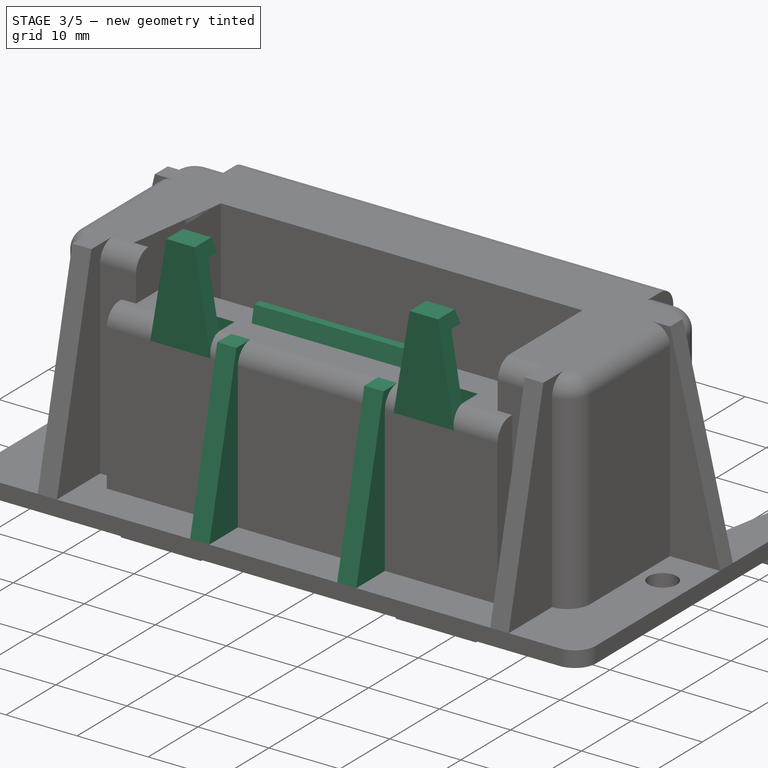
[diagram: stage 3 of 5 — iso view after this stage's code; geometry added in this stage tinted green]
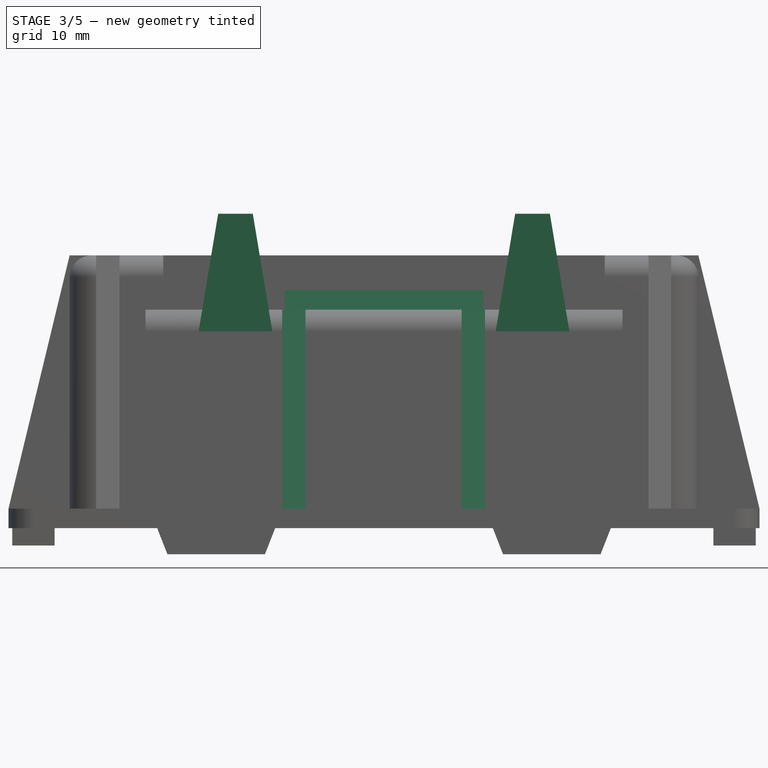
[diagram: stage 3 of 5 — front view after this stage's code; geometry added in this stage tinted green]
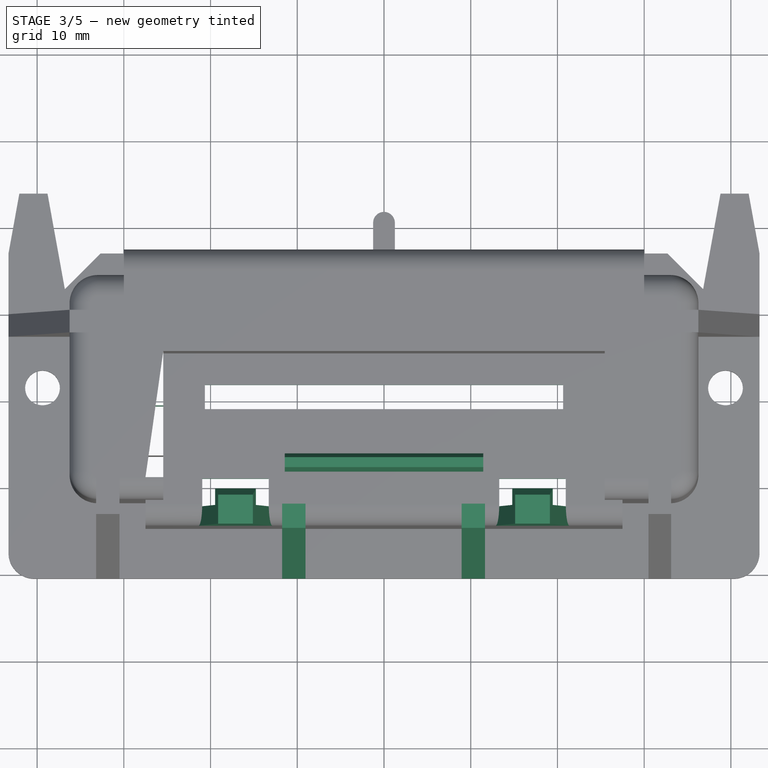
[diagram: stage 3 of 5 — top view after this stage's code; geometry added in this stage tinted green]
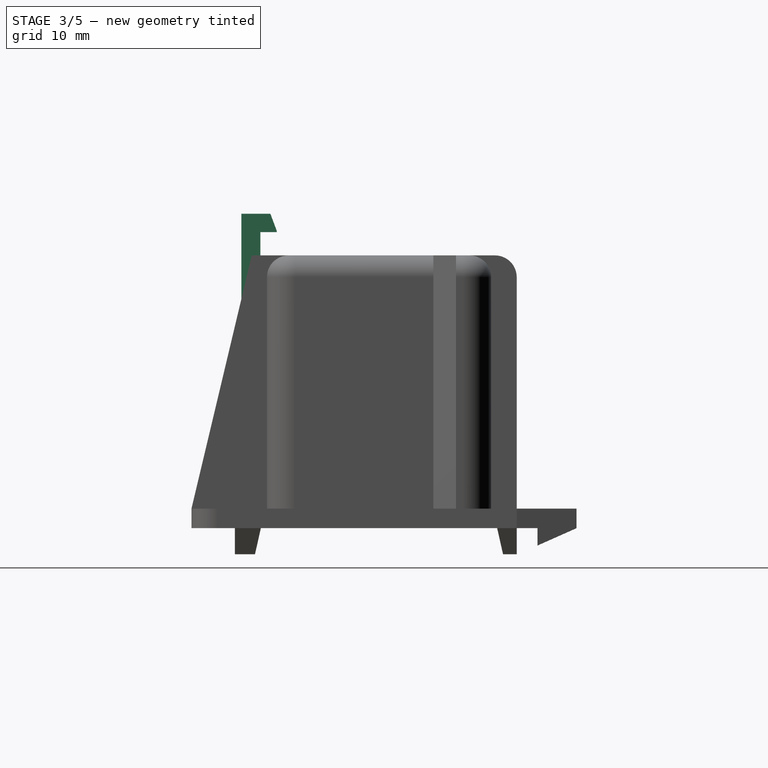
[diagram: stage 3 of 5 — right view after this stage's code; geometry added in this stage tinted green]
FEATURE [Sketcher::SketchObject] Sketch013
  ArcFitTolerance = 1e-06
  AttachmentOffset = pos=(0,0,8.95) rot=(0,0,1;0rad)
  AttachmentSupport = -> [YZ_Plane]
  ExternalGeometry = -> [Pocket005]
  FullyConstrained = true
  MakeInternals = false
  MapMode = 5
  Placement = pos=(8.95,0,0) rot=(0.57735,0.57735,0.57735;2.0944rad)
  sketch-geometry (5):
    g0: LineSegment StartX=-12.25 StartY=25.2 StartZ=0 EndX=-15.0376 EndY=25.2 EndZ=0
    g1: LineSegment StartX=-15.0376 StartY=25.2 StartZ=0 EndX=-20.5 EndY=2.25 EndZ=0
    g2: LineSegment StartX=-20.5 StartY=2.25 StartZ=0 EndX=-14.75 EndY=2.25 EndZ=0
    g3: LineSegment StartX=-14.75 StartY=2.25 StartZ=0 EndX=-14.75 EndY=22.7 EndZ=0
    g4: LineSegment StartX=-14.75 StartY=22.7 StartZ=0 EndX=-12.25 EndY=25.2 EndZ=0
  constraints (12):
    c: Coincident(g-3,g0)
    c: Coincident(g0,g1)
    c: Coincident(g1,g-4)
    c: Coincident(g1,g2)
    c: Horizontal(g2)
    c: Coincident(g2,g3)
    c: Coincident(g3,g-3)
    c: Vertical(g3)
    c: Coincident(g3,g4)
    c: Coincident(g4,g0)
    c: PointOnObject(g0,g-4)
    c: Horizontal(g0)
FEATURE [PartDesign::Pad] Pad010
  BaseFeature = -> Pocket005
  Direction = (1,0,0)
  Length = 2.7
  Length2 = 10
  Profile = -> Sketch013
  ReferenceAxis = -> Sketch013 [N_Axis]
  Suppressed = false
  Type = 0
FEATURE [PartDesign::SubShapeBinder] Binder003
  BindCopyOnChange = 0
  BindMode = 0
  ClaimChildren = false
  Context = -> Part [Body.Binder003.]
  Fuse = false
  MakeFace = true
  OffsetFill = false
  OffsetIntersection = false
  OffsetJoinType = 0
  OffsetOpenResult = false
  PartialLoad = false
  Placement = pos=(-18,0,0) rot=(0,0,1;0rad)
  Relative = true
  Support = -> [Sketch013]
  _Version = 2
FEATURE [PartDesign::Pad] Pad011
  BaseFeature = -> Pad010
  Direction = (1,0,0)
  Length = 2.7
  Length2 = 10
  Profile = -> Binder003
  Refine = true
  Reversed = true
  Suppressed = false
  Type = 0
FEATURE [Sketcher::SketchObject] Sketch014
  ArcFitTolerance = 1e-06
  AttachmentSupport = -> [Pad011]
  ExternalGeometry = -> [Pad011]
  FullyConstrained = true
  MakeInternals = false
  MapMode = 5
  Placement = pos=(0,0,13.5) rot=(1,0,0;3.14159rad)
  sketch-geometry (7):
    g0: LineSegment StartX=-20.65 StartY=1.175 StartZ=0 EndX=-20.65 EndY=-1.625 EndZ=0
    g1: LineSegment StartX=-20.65 StartY=-1.625 StartZ=0 EndX=20.65 EndY=-1.625 EndZ=0
    g2: LineSegment StartX=20.65 StartY=-1.625 StartZ=0 EndX=20.65 EndY=1.175 EndZ=0
    g3: LineSegment StartX=20.65 StartY=1.175 StartZ=0 EndX=-20.65 EndY=1.175 EndZ=0
    g4: GeomPoint X=-27.45 Y=-0.225 Z=0
    g5: GeomPoint X=27.45 Y=-0.225 Z=0
    g6: LineSegment [constr] StartX=-27.45 StartY=-0.225 StartZ=0 EndX=27.45 EndY=-0.225 EndZ=0
  constraints (14):
    c: Coincident(g0,g1)
    c: Coincident(g1,g2)
    c: Coincident(g2,g3)
    c: Coincident(g3,g0)
    c: Vertical(g2)
    c: Horizontal(g3)
    c: DistanceX(g3,g3) = 41.3
    c: DistanceY(g2,g2) = 2.8
    c: Symmetric(g-3,g-4,g5)
    c: Symmetric(g-3,g-4,g4)
    c: Coincident(g6,g4)
    c: Coincident(g6,g5)
    c: Symmetric(g0,g0,g6)
    c: Symmetric(g0,g1,g-2)
FEATURE [PartDesign::Pocket] Pocket006
  BaseFeature = -> Pad011
  Direction = (0,0,1)
  Length = 5
  Length2 = 5
  Profile = -> Sketch014
  ReferenceAxis = -> Sketch014 [N_Axis]
  Suppressed = false
  Type = 1
FEATURE [Sketcher::SketchObject] Sketch015
  ArcFitTolerance = 1e-06
  AttachmentSupport = -> [Pocket006]
  ExternalGeometry = -> [Pocket006]
  FullyConstrained = true
  MakeInternals = false
  MapMode = 5
  Placement = pos=(0,0,13.5) rot=(1,0,0;3.14159rad)
  sketch-geometry (9):
    g0: LineSegment StartX=-26.65 StartY=0.725 StartZ=0 EndX=-26.65 EndY=-1.175 EndZ=0
    g1: LineSegment StartX=-26.65 StartY=-1.175 StartZ=0 EndX=-20.65 EndY=-1.175 EndZ=0
    g2: LineSegment StartX=-20.65 StartY=-1.175 StartZ=0 EndX=-20.65 EndY=0.725 EndZ=0
    g3: LineSegment StartX=-20.65 StartY=0.725 StartZ=0 EndX=-26.65 EndY=0.725 EndZ=0
    g4: LineSegment StartX=20.65 StartY=0.725 StartZ=0 EndX=20.65 EndY=-1.175 EndZ=0
    g5: LineSegment StartX=20.65 StartY=-1.175 StartZ=0 EndX=26.65 EndY=-1.175 EndZ=0
    g6: LineSegment StartX=26.65 StartY=-1.175 StartZ=0 EndX=26.65 EndY=0.725 EndZ=0
    g7: LineSegment StartX=26.65 StartY=0.725 StartZ=0 EndX=20.65 EndY=0.725 EndZ=0
    g8: GeomPoint X=20.65 Y=-0.225 Z=0
  constraints (24):
    c: Coincident(g0,g1)
    c: Coincident(g1,g2)
    c: Coincident(g2,g3)
    c: Coincident(g3,g0)
    c: Vertical(g0)
    c: Vertical(g2)
    c: Horizontal(g1)
    c: Horizontal(g3)
    c: Coincident(g4,g5)
    c: Coincident(g5,g6)
    c: Coincident(g6,g7)
    c: Coincident(g7,g4)
    c: Vertical(g4)
    c: Vertical(g6)
    c: Horizontal(g5)
    c: Horizontal(g7)
    c: Equal(g7,g3)
    c: Horizontal(g2,g4)
    c: Horizontal(g1,g4)
    c: PointOnObject(g1,g-3)
    c: DistanceY(g6,g6) = 1.9
    c: DistanceX(g3,g3) = 6
    c: Symmetric(g4,g4,g8)
    c: Symmetric(g-4,g-4,g8)
FEATURE [PartDesign::Pad] Pad012
  BaseFeature = -> Pocket006
  Direction = (0,0,-1)
  Length = 6.24
  Length2 = 10
  Profile = -> Sketch015
  ReferenceAxis = -> Sketch015 [N_Axis]
  Suppressed = false
  Type = 0
FEATURE [Sketcher::SketchObject] Sketch016
  ArcFitTolerance = 1e-06
  AttachmentSupport = -> [Pad012]
  ExternalGeometry = -> [Pad012]
  FullyConstrained = true
  MakeInternals = false
  MapMode = 5
  Placement = pos=(0,-14.75,0) rot=(1,0,0;1.5708rad)
  sketch-geometry (12):
    g0: LineSegment StartX=-21.375 StartY=22.7 StartZ=0 EndX=-19.125 EndY=36.25 EndZ=0
    g1: LineSegment StartX=-19.125 StartY=36.25 StartZ=0 EndX=-15.125 EndY=36.25 EndZ=0
    g2: LineSegment StartX=-15.125 StartY=36.25 StartZ=0 EndX=-12.875 EndY=22.7 EndZ=0
    g3: LineSegment StartX=-12.875 StartY=22.7 StartZ=0 EndX=-21.375 EndY=22.7 EndZ=0
    g4: LineSegment StartX=12.875 StartY=22.7 StartZ=0 EndX=15.125 EndY=36.25 EndZ=0
    g5: LineSegment StartX=15.125 StartY=36.25 StartZ=0 EndX=19.125 EndY=36.25 EndZ=0
    g6: LineSegment StartX=19.125 StartY=36.25 StartZ=0 EndX=21.375 EndY=22.7 EndZ=0
    g7: LineSegment StartX=21.375 StartY=22.7 StartZ=0 EndX=12.875 EndY=22.7 EndZ=0
    g8: GeomPoint X=-17.125 Y=36.25 Z=0
    g9: GeomPoint X=-17.125 Y=22.7 Z=0
    g10: GeomPoint X=17.125 Y=36.25 Z=0
    g11: GeomPoint X=17.125 Y=22.7 Z=0
  constraints (27):
    c: PointOnObject(g0,g-3)
    c: Coincident(g0,g1)
    c: Horizontal(g1)
    c: Coincident(g1,g2)
    c: PointOnObject(g2,g-3)
    c: Coincident(g2,g3)
    c: Coincident(g3,g0)
    c: Coincident(g4,g5)
    c: Horizontal(g5)
    c: Coincident(g5,g6)
    c: PointOnObject(g6,g-4)
    c: Coincident(g6,g7)
    c: Coincident(g7,g4)
    c: Horizontal(g1,g4)
    c: Equal(g3,g7)
    c: Equal(g1,g5)
    c: Symmetric(g1,g1,g8)
    c: Symmetric(g3,g3,g9)
    c: Symmetric(g5,g5,g10)
    c: Symmetric(g7,g7,g11)
    c: Vertical(g8,g9)
    c: Vertical(g10,g11)
    c: DistanceX(g1,g1) = 4
    c: DistanceX(g3,g3) = 8.5
    c: DistanceX(g0,g5) = 38.25
    c: Symmetric(g2,g4,g-2)
    c: DistanceY(g-5,g5) = 34
FEATURE [PartDesign::Pad] Pad013
  BaseFeature = -> Pad012
  Direction = (0,-1,2e-16)
  Length = 2.2
  Length2 = 10
  Profile = -> Sketch016
  ReferenceAxis = -> Sketch016 [N_Axis]
  Refine = true
  Reversed = true
  Suppressed = false
  Type = 0
FEATURE [Sketcher::SketchObject] Sketch017
  ArcFitTolerance = 1e-06
  AttachmentSupport = -> [Pad013]
  ExternalGeometry = -> [Pad013]
  FullyConstrained = true
  MakeInternals = false
  MapMode = 5
  Placement = pos=(0,0,25.2) rot=(0,0,1;0rad)
  sketch-geometry (8):
    g0: LineSegment StartX=-20.9629 StartY=-12.55 StartZ=0 EndX=-13.2871 EndY=-12.55 EndZ=0
    g1: LineSegment StartX=-13.2871 StartY=-12.55 StartZ=0 EndX=-13.2871 EndY=-9.35 EndZ=0
    g2: LineSegment StartX=-13.2871 StartY=-9.35 StartZ=0 EndX=-20.9629 EndY=-9.35 EndZ=0
    g3: LineSegment StartX=-20.9629 StartY=-9.35 StartZ=0 EndX=-20.9629 EndY=-12.55 EndZ=0
    g4: LineSegment StartX=13.2871 StartY=-12.55 StartZ=0 EndX=20.9629 EndY=-12.55 EndZ=0
    g5: LineSegment StartX=20.9629 StartY=-12.55 StartZ=0 EndX=20.9629 EndY=-9.35 EndZ=0
    g6: LineSegment StartX=20.9629 StartY=-9.35 StartZ=0 EndX=13.2871 EndY=-9.35 EndZ=0
    g7: LineSegment StartX=13.2871 StartY=-9.35 StartZ=0 EndX=13.2871 EndY=-12.55 EndZ=0
  constraints (22):
    c: Coincident(g0,g1)
    c: Coincident(g1,g2)
    c: Coincident(g2,g3)
    c: Coincident(g3,g0)
    c: Horizontal(g0)
    c: Horizontal(g2)
    c: Vertical(g1)
    c: Vertical(g3)
    c: Coincident(g0,g-3)
    c: Coincident(g4,g5)
    c: Coincident(g5,g6)
    c: Coincident(g6,g7)
    c: Coincident(g7,g4)
    c: Horizontal(g4)
    c: Horizontal(g6)
    c: Vertical(g5)
    c: Vertical(g7)
    c: Coincident(g4,g-5)
    c: Horizontal(g1,g6)
    c: PointOnObject(g-4,g1)
    c: PointOnObject(g-6,g5)
    c: DistanceY(g1,g1) = 3.2
FEATURE [PartDesign::Pocket] Pocket007
  BaseFeature = -> Pad013
  Direction = (0,0,-1)
  Length = 0
  Length2 = 5
  Profile = -> Sketch017
  ReferenceAxis = -> Sketch017 [N_Axis]
  Refine = true
  Suppressed = false
  Type = 3
  UpToFace = -> Pad013 [Face138]
FEATURE [Sketcher::SketchObject] Sketch018
  ArcFitTolerance = 1e-06
  AttachmentSupport = -> [YZ_Plane001]
  ExternalGeometry = -> [Pocket007]
  FullyConstrained = false
  MakeInternals = false
  MapMode = 5
  Placement = pos=(0,0,0) rot=(0.57735,0.57735,0.57735;2.0944rad)
  sketch-geometry (6):
    g0: LineSegment StartX=-8.55 StartY=25.2 StartZ=0 EndX=-8.075 EndY=27.4437 EndZ=0
    g1: LineSegment StartX=-8.075 StartY=27.4437 StartZ=0 EndX=-6.925 EndY=27.4437 EndZ=0
    g2: LineSegment StartX=-6.925 StartY=27.4437 StartZ=0 EndX=-6.45 EndY=25.2 EndZ=0
    g3: LineSegment StartX=-6.45 StartY=25.2 StartZ=0 EndX=-8.55 EndY=25.2 EndZ=0
    g4: GeomPoint X=-7.5 Y=27.4437 Z=0
    g5: GeomPoint X=-7.5 Y=25.2 Z=0
  constraints (13):
    c: PointOnObject(g0,g-3)
    c: Coincident(g0,g1)
    c: Horizontal(g1)
    c: Coincident(g1,g2)
    c: PointOnObject(g2,g-3)
    c: Coincident(g2,g3)
    c: Coincident(g3,g0)
    c: Symmetric(g1,g1,g4)
    c: Symmetric(g3,g3,g5)
    c: Vertical(g4,g5)
    c: DistanceX(g1,g1) = 1.15
    c: DistanceX(g3,g3) = 2.1
    c: DistanceX(g-4,g2) = 8.3
FEATURE [PartDesign::Pad] Pad014
  BaseFeature = -> Pocket007
  Direction = (1,0,0)
  Length = 22.9
  Length2 = 10
  Midplane = true
  Profile = -> Sketch018
  ReferenceAxis = -> Sketch018 [N_Axis]
  Suppressed = false
  Type = 0
FEATURE [Sketcher::SketchObject] Sketch019
  ArcFitTolerance = 1e-06
  AttachmentSupport = -> [Pad014]
  ExternalGeometry = -> [Pad014]
  FullyConstrained = true
  MakeInternals = false
  MapMode = 5
  Placement = pos=(-8.86129,-4e-16,-1.47143) rot=(0.542982,0.542982,0.640579;2.00214rad)
  sketch-geometry (4):
    g0: LineSegment StartX=-12.55 StartY=38.2379 StartZ=0 EndX=-11.4 EndY=38.2379 EndZ=0
    g1: LineSegment StartX=-11.4 StartY=38.2379 StartZ=0 EndX=-10.65 EndY=36.0979 EndZ=0
    g2: LineSegment StartX=-10.65 StartY=36.0979 StartZ=0 EndX=-12.55 EndY=36.0979 EndZ=0
    g3: LineSegment StartX=-12.55 StartY=36.0979 StartZ=0 EndX=-12.55 EndY=38.2379 EndZ=0
  constraints (11):
    c: Coincident(g-3,g0)
    c: Horizontal(g0)
    c: Coincident(g0,g1)
    c: Coincident(g1,g2)
    c: Horizontal(g2)
    c: Coincident(g2,g3)
    c: Coincident(g3,g0)
    c: Vertical(g3)
    c: DistanceY(g3,g3) = 2.14
    c: DistanceX(g2,g2) = 1.9
    c: DistanceX(g0,g1) = 0.75
FEATURE [PartDesign::Pad] Pad015
  BaseFeature = -> Pad014
  Direction = (1,0,0)
  Length = 10
  Length2 = 10
  Profile = -> Sketch019
  ReferenceAxis = -> Pad014 [Edge196]
  Refine = true
  Reversed = true
  Suppressed = false
  Type = 3
  UpToFace = -> Pad014 [Face48]
FEATURE [Sketcher::SketchObject] Sketch020
  ArcFitTolerance = 1e-06
  AttachmentSupport = -> [Pad015]
  ExternalGeometry = -> [Pad015,Sketch019]
  FullyConstrained = true
  MakeInternals = false
  MapMode = 5
  Placement = pos=(8.86129,-4e-16,-1.47143) rot=(0.542982,-0.542982,-0.640579;2.00214rad)
  sketch-geometry (4):
    g0: LineSegment StartX=12.55 StartY=38.2379 StartZ=0 EndX=12.55 EndY=36.2128 EndZ=0
    g1: LineSegment StartX=12.55 StartY=36.2128 StartZ=0 EndX=10.65 EndY=36.2128 EndZ=0
    g2: LineSegment StartX=10.65 StartY=36.2128 StartZ=0 EndX=11.4 EndY=38.2379 EndZ=0
    g3: LineSegment StartX=11.4 StartY=38.2379 StartZ=0 EndX=12.55 EndY=38.2379 EndZ=0
  constraints (11):
    c: Coincident(g-3,g0)
    c: Vertical(g0)
    c: Coincident(g0,g1)
    c: Horizontal(g1)
    c: Coincident(g1,g2)
    c: Coincident(g2,g3)
    c: Coincident(g3,g0)
    c: Horizontal(g3)
    c: Equal(g-6,g0)
    c: Equal(g-4,g3)
    c: Equal(g-5,g1)
FEATURE [PartDesign::Pad] Pad016
  BaseFeature = -> Pad015
  Direction = (1,0,0)
  Length = 10
  Length2 = 10
  Profile = -> Sketch020
  ReferenceAxis = -> Pad015 [Edge192]
  Refine = true
  Suppressed = false
  Type = 3
  UpToFace = -> Pad015 [Face43]
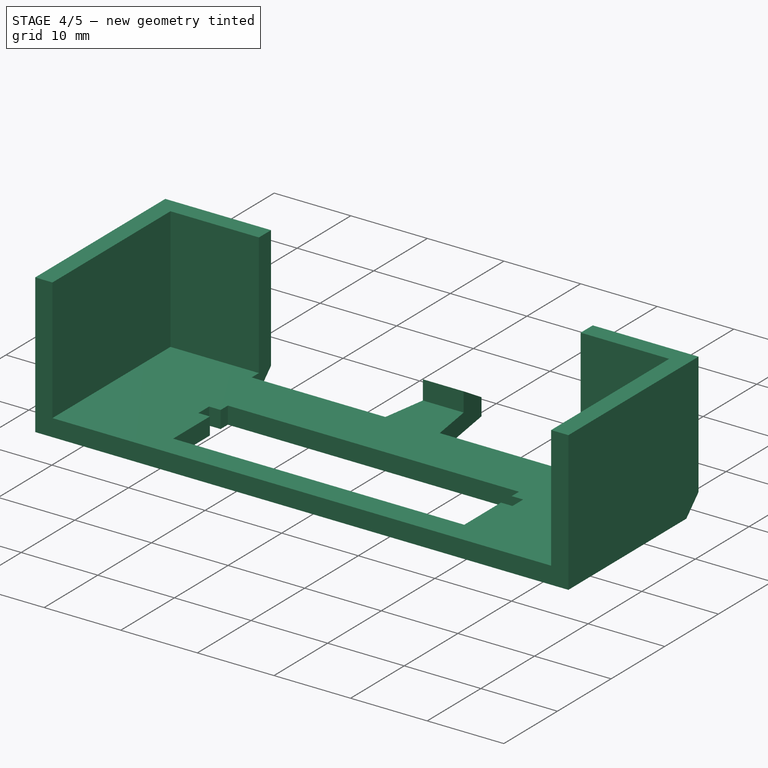
[diagram: stage 4 of 5 — iso view after this stage's code; geometry added in this stage tinted green]
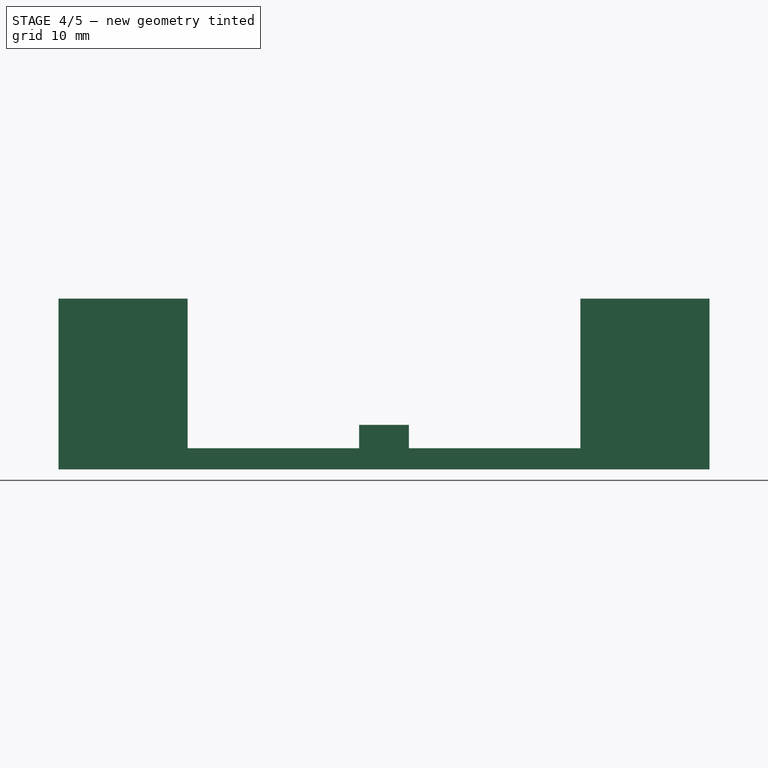
[diagram: stage 4 of 5 — front view after this stage's code; geometry added in this stage tinted green]
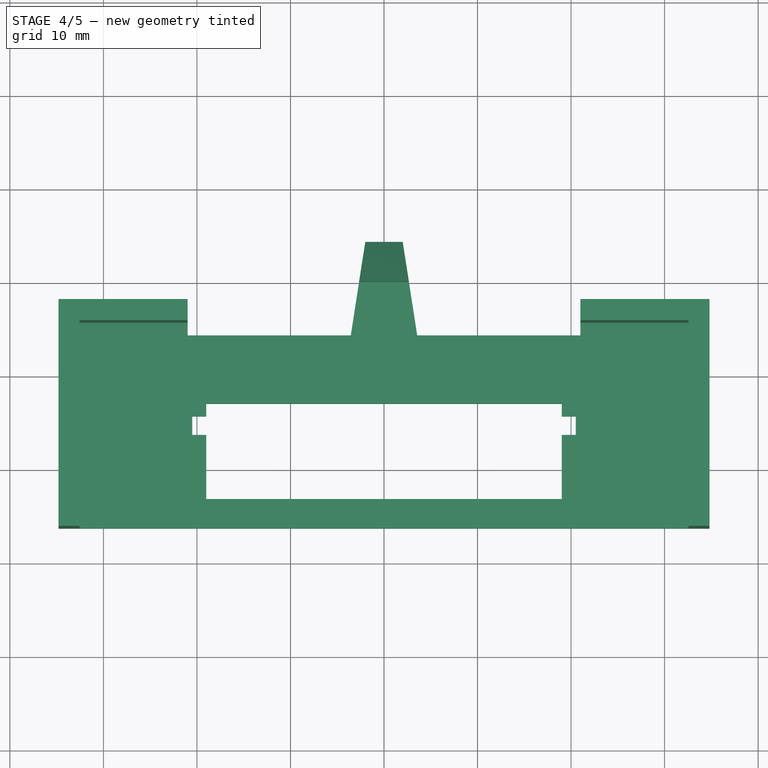
[diagram: stage 4 of 5 — top view after this stage's code; geometry added in this stage tinted green]
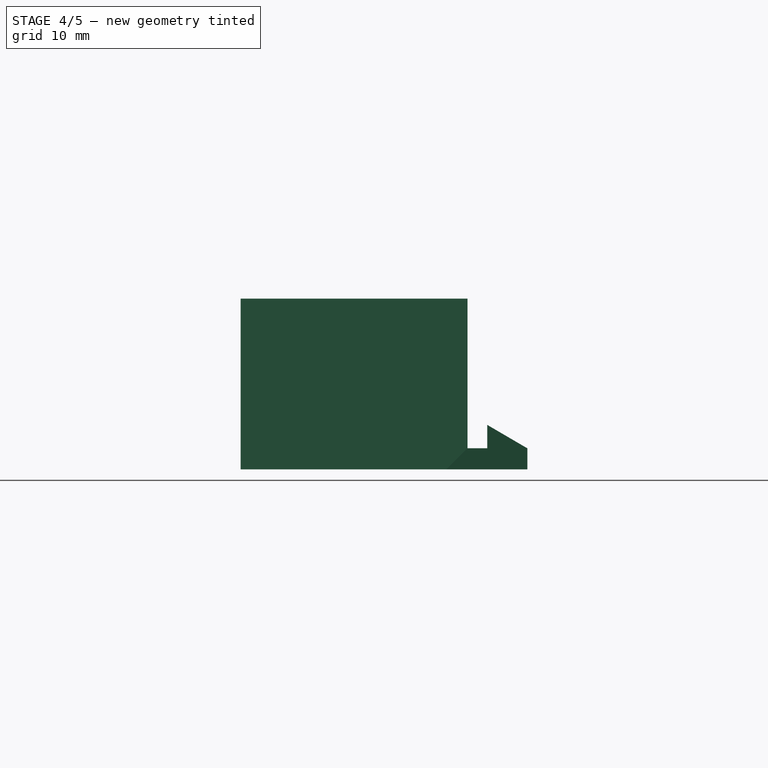
[diagram: stage 4 of 5 — right view after this stage's code; geometry added in this stage tinted green]
FEATURE [Sketcher::SketchObject] Sketch021
  ArcFitTolerance = 1e-06
  AttachmentSupport = -> [Pad016]
  ExternalGeometry = -> [Pad016]
  FullyConstrained = true
  MakeInternals = false
  MapMode = 5
  Placement = pos=(0,17,-3.4063e-12) rot=(0,0.707107,0.707107;3.14159rad)
  sketch-geometry (8):
    g0: LineSegment StartX=-20.3372 StartY=28.95 StartZ=0 EndX=-19.125 EndY=36.25 EndZ=0
    g1: LineSegment StartX=-19.125 StartY=36.25 StartZ=0 EndX=-15.125 EndY=36.25 EndZ=0
    g2: LineSegment StartX=-15.125 StartY=36.25 StartZ=0 EndX=-13.9128 EndY=28.95 EndZ=0
    g3: LineSegment StartX=-13.9128 StartY=28.95 StartZ=0 EndX=-20.3372 EndY=28.95 EndZ=0
    g4: LineSegment StartX=13.9128 StartY=28.95 StartZ=0 EndX=15.125 EndY=36.25 EndZ=0
    g5: LineSegment StartX=15.125 StartY=36.25 StartZ=0 EndX=19.125 EndY=36.25 EndZ=0
    g6: LineSegment StartX=19.125 StartY=36.25 StartZ=0 EndX=20.3372 EndY=28.95 EndZ=0
    g7: LineSegment StartX=20.3372 StartY=28.95 StartZ=0 EndX=13.9128 EndY=28.95 EndZ=0
  constraints (20):
    c: PointOnObject(g0,g-7)
    c: Coincident(g0,g-6)
    c: Coincident(g0,g1)
    c: Coincident(g1,g-5)
    c: Coincident(g1,g2)
    c: PointOnObject(g2,g-7)
    c: Coincident(g2,g3)
    c: Coincident(g3,g0)
    c: PointOnObject(g4,g-7)
    c: Coincident(g4,g-4)
    c: Coincident(g4,g5)
    c: Coincident(g5,g-3)
    c: Coincident(g5,g6)
    c: PointOnObject(g6,g-7)
    c: Coincident(g6,g7)
    c: Coincident(g7,g4)
    c: PointOnObject(g0,g-6)
    c: PointOnObject(g2,g-5)
    c: PointOnObject(g4,g-4)
    c: PointOnObject(g6,g-3)
FEATURE [PartDesign::Pad] Pad017
  BaseFeature = -> Pad016
  Direction = (0,1,-2.001e-13)
  Length = 2.6
  Length2 = 10
  Profile = -> Sketch021
  ReferenceAxis = -> Sketch021 [N_Axis]
  Refine = true
  Reversed = true
  Suppressed = false
  Type = 0
FEATURE [PartDesign::Fillet] Fillet001
  Base = -> Pad017 [Edge112,Edge107,Edge114,Edge110,Edge366,Edge515,Edge514,Edge513,Edge357,Edge509,Edge508,Edge510,Edge356,Edge358,Edge507,Edge367,Edge516,Edge512,Edge511,Edge365,Edge387,Edge381,Edge379,Edge384,Edge388,Edge383,Edge500,Edge382]
  BaseFeature = -> Pad017
  Radius = 0.7
  SupportTransform = false
  Suppressed = false
  UseAllEdges = false
FEATURE [PartDesign::SubShapeBinder] Binder004
  BindCopyOnChange = 0
  BindMode = 0
  ClaimChildren = false
  Context = -> Part001 [Body001.Binder004.]
  Fuse = false
  MakeFace = true
  OffsetFill = false
  OffsetIntersection = false
  OffsetJoinType = 0
  OffsetOpenResult = false
  PartialLoad = false
  Relative = true
  Support = -> [Part[Body.Fillet001.Face36]]
  _Version = 2
FEATURE [PartDesign::SubShapeBinder] Binder005
  BindCopyOnChange = 0
  BindMode = 0
  ClaimChildren = false
  Context = -> Part001 [Body001.Binder005.]
  Fuse = false
  MakeFace = true
  OffsetFill = false
  OffsetIntersection = false
  OffsetJoinType = 0
  OffsetOpenResult = false
  PartialLoad = false
  Placement = pos=(70,0,0) rot=(0,0,1;0rad)
  Relative = true
  Support = -> [Sketch025]
  _Version = 2
FEATURE [PartDesign::SubShapeBinder] Binder006
  BindCopyOnChange = 0
  BindMode = 0
  ClaimChildren = false
  Context = -> Part001 [Body001.Binder006.]
  Fuse = false
  MakeFace = true
  OffsetFill = false
  OffsetIntersection = false
  OffsetJoinType = 0
  OffsetOpenResult = false
  PartialLoad = false
  Relative = true
  Support = -> [Part[Body.Fillet001.Edge142]]
  _Version = 2
FEATURE [Sketcher::SketchObject] Sketch022
  ArcFitTolerance = 1e-06
  AttachmentSupport = -> [Binder004]
  ExternalGeometry = -> [Binder004,Binder006]
  FullyConstrained = true
  MakeInternals = false
  MapMode = 5
  Placement = pos=(0,0,31.45) rot=(0,0,1;0rad)
  sketch-geometry (24):
    g0: LineSegment StartX=-34.8 StartY=-6.25 StartZ=0 EndX=34.8 EndY=-6.25 EndZ=0
    g1: LineSegment StartX=34.8 StartY=-6.25 StartZ=0 EndX=34.8 EndY=18 EndZ=0
    g2: LineSegment StartX=34.8 StartY=18 StartZ=0 EndX=21 EndY=18 EndZ=0
    g3: LineSegment StartX=21 StartY=18 StartZ=0 EndX=21 EndY=14.4 EndZ=0
    g4: LineSegment StartX=21 StartY=14.4 StartZ=0 EndX=3.55 EndY=14.4 EndZ=0
    g5: LineSegment StartX=3.55 StartY=14.4 StartZ=0 EndX=2 EndY=24.4 EndZ=0
    g6: LineSegment StartX=2 StartY=24.4 StartZ=0 EndX=-2 EndY=24.4 EndZ=0
    g7: LineSegment StartX=-2 StartY=24.4 StartZ=0 EndX=-3.55 EndY=14.4 EndZ=0
    g8: LineSegment StartX=-3.55 StartY=14.4 StartZ=0 EndX=-21 EndY=14.4 EndZ=0
    g9: LineSegment StartX=-21 StartY=14.4 StartZ=0 EndX=-21 EndY=18 EndZ=0
    g10: LineSegment StartX=-21 StartY=18 StartZ=0 EndX=-34.8 EndY=18 EndZ=0
    g11: LineSegment StartX=-34.8 StartY=18 StartZ=0 EndX=-34.8 EndY=-6.25 EndZ=0
    g12: LineSegment StartX=-19 StartY=-3.1 StartZ=0 EndX=19 EndY=-3.1 EndZ=0
    g13: LineSegment StartX=19 StartY=7.1 StartZ=0 EndX=-19 EndY=7.1 EndZ=0
    g14: LineSegment StartX=-19 StartY=7.1 StartZ=0 EndX=-19 EndY=5.75 EndZ=0
    g15: LineSegment StartX=-19 StartY=5.75 StartZ=0 EndX=-20.5 EndY=5.75 EndZ=0
    g16: LineSegment StartX=-20.5 StartY=5.75 StartZ=0 EndX=-20.5 EndY=3.75 EndZ=0
    g17: LineSegment StartX=-20.5 StartY=3.75 StartZ=0 EndX=-19 EndY=3.75 EndZ=0
    g18: LineSegment StartX=-19 StartY=3.75 StartZ=0 EndX=-19 EndY=-3.1 EndZ=0
    g19: LineSegment StartX=19 StartY=5.75 StartZ=0 EndX=19 EndY=7.1 EndZ=0
    g20: LineSegment StartX=20.5 StartY=5.75 StartZ=0 EndX=19 EndY=5.75 EndZ=0
    g21: LineSegment StartX=20.5 StartY=3.75 StartZ=0 EndX=20.5 EndY=5.75 EndZ=0
    g22: LineSegment StartX=19 StartY=-3.1 StartZ=0 EndX=19 EndY=3.75 EndZ=0
    g23: LineSegment StartX=19 StartY=3.75 StartZ=0 EndX=20.5 EndY=3.75 EndZ=0
  constraints (68):
    c: Coincident(g0,g1)
    c: Vertical(g1)
    c: Coincident(g1,g2)
    c: Horizontal(g2)
    c: Coincident(g2,g3)
    c: Vertical(g3)
    c: Coincident(g3,g4)
    c: Horizontal(g4)
    c: Coincident(g4,g5)
    c: Coincident(g5,g6)
    c: Coincident(g6,g7)
    c: Coincident(g7,g8)
    c: Horizontal(g8)
    c: Coincident(g8,g9)
    c: Vertical(g9)
    c: Coincident(g9,g10)
    c: Horizontal(g10)
    c: Coincident(g10,g11)
    c: Coincident(g11,g0)
    c: Vertical(g11)
    c: Symmetric(g6,g5,g-2)
    c: Symmetric(g7,g4,g-2)
    c: Symmetric(g0,g0,g-2)
    c: Equal(g9,g3)
    c: Equal(g10,g2)
    c: PointOnObject(g-4,g4)
    c: DistanceY(g1,g1) = 24.25
    c: DistanceX(g0,g0) = 69.6
    c: DistanceX(g6,g6) = 4
    c: DistanceX(g7,g4) = 7.1
    c: DistanceX(g2,g1) = 13.8
    c: DistanceY(g3,g3) = 3.6
    c: DistanceY(g4,g5) = 10
    c: Coincident(g18,g12)
    c: Coincident(g12,g22)
    c: Coincident(g19,g13)
    c: Coincident(g13,g14)
    c: Horizontal(g12)
    c: Symmetric(g14,g19,g-2)
    c: DistanceX(g12,g12) = 38
    c: DistanceY(g22,g19) = 10.2
    c: DistanceY(g14,g8) = 7.3
    c: Coincident(g14,g15)
    c: Coincident(g15,g16)
    c: Coincident(g16,g17)
    c: Coincident(g17,g18)
    c: Vertical(g18)
    c: Coincident(g20,g19)
    c: Coincident(g21,g20)
    c: Coincident(g23,g21)
    c: Coincident(g22,g23)
    c: Vertical(g22)
    c: Vertical(g16)
    c: Horizontal(g15)
    c: Horizontal(g17)
    c: Vertical(g21)
    c: Horizontal(g20)
    c: Horizontal(g23)
    c: Horizontal(g14,g19)
    c: Horizontal(g17,g22)
    c: Equal(g23,g17)
    c: Vertical(g19,g22)
    c: Vertical(g15,g17)
    c: Vertical(g14)
    c: Vertical(g19)
    c: DistanceY(g21,g21) = 2
    c: DistanceX(g17,g17) = 1.5
    c: DistanceY(g-5,g15) = 0.5
FEATURE [PartDesign::Pad] Pad018
  Direction = (0,0,1)
  Length = 2.25
  Length2 = 10
  Profile = -> Sketch022
  ReferenceAxis = -> Sketch022 [N_Axis]
  Suppressed = false
  Type = 0
FEATURE [Sketcher::SketchObject] Sketch023
  ArcFitTolerance = 1e-06
  AttachmentSupport = -> [Pad018]
  ExternalGeometry = -> [Pad018]
  FullyConstrained = true
  MakeInternals = false
  MapMode = 5
  Placement = pos=(-5.64635,0.875184,0) rot=(-0.518232,0.604746,0.604746;4.09785rad)
  sketch-geometry (3):
    g0: LineSegment StartX=-23.8057 StartY=33.7 StartZ=0 EndX=-19.4756 EndY=36.2 EndZ=0
    g1: LineSegment StartX=-19.4756 StartY=36.2 StartZ=0 EndX=-19.4756 EndY=33.7 EndZ=0
    g2: LineSegment StartX=-19.4756 StartY=33.7 StartZ=0 EndX=-23.8057 EndY=33.7 EndZ=0
  constraints (8):
    c: Coincident(g-3,g0)
    c: Coincident(g0,g1)
    c: Vertical(g1)
    c: Coincident(g1,g2)
    c: Coincident(g2,g0)
    c: Horizontal(g2)
    c: DistanceY(g1,g1) = 2.5
    c: Distance(g0) = 5
FEATURE [PartDesign::Pad] Pad019
  BaseFeature = -> Pad018
  Direction = (-1,0,0)
  Length = 10
  Length2 = 10
  Profile = -> Sketch023
  ReferenceAxis = -> Pad018 [Edge22]
  Refine = true
  Reversed = true
  Suppressed = false
  Type = 3
  UpToFace = -> Pad018 [Face6]
FEATURE [Sketcher::SketchObject] Sketch024
  ArcFitTolerance = 1e-06
  AttachmentSupport = -> [Pad019]
  ExternalGeometry = -> [Pad019]
  FullyConstrained = true
  MakeInternals = false
  MapMode = 5
  Placement = pos=(0,0,33.7) rot=(0,0,1;0rad)
  sketch-geometry (12):
    g0: LineSegment StartX=-34.8 StartY=-6.25 StartZ=0 EndX=-32.55 EndY=-6.25 EndZ=0
    g1: LineSegment StartX=-32.55 StartY=-6.25 StartZ=0 EndX=-32.55 EndY=15.75 EndZ=0
    g2: LineSegment StartX=-32.55 StartY=15.75 StartZ=0 EndX=-21 EndY=15.75 EndZ=0
    g3: LineSegment StartX=-21 StartY=15.75 StartZ=0 EndX=-21 EndY=18 EndZ=0
    g4: LineSegment StartX=-21 StartY=18 StartZ=0 EndX=-34.8 EndY=18 EndZ=0
    g5: LineSegment StartX=-34.8 StartY=18 StartZ=0 EndX=-34.8 EndY=-6.25 EndZ=0
    g6: LineSegment StartX=34.8 StartY=-6.25 StartZ=0 EndX=32.55 EndY=-6.25 EndZ=0
    g7: LineSegment StartX=32.55 StartY=-6.25 StartZ=0 EndX=32.55 EndY=15.75 EndZ=0
    g8: LineSegment StartX=32.55 StartY=15.75 StartZ=0 EndX=21 EndY=15.75 EndZ=0
    g9: LineSegment StartX=21 StartY=15.75 StartZ=0 EndX=21 EndY=18 EndZ=0
    g10: LineSegment StartX=21 StartY=18 StartZ=0 EndX=34.8 EndY=18 EndZ=0
    g11: LineSegment StartX=34.8 StartY=18 StartZ=0 EndX=34.8 EndY=-6.25 EndZ=0
  constraints (32):
    c: Coincident(g-6,g0)
    c: Horizontal(g0)
    c: Coincident(g0,g1)
    c: Vertical(g1)
    c: Coincident(g1,g2)
    c: Horizontal(g2)
    c: Coincident(g2,g3)
    c: Vertical(g3)
    c: Coincident(g3,g4)
    c: Coincident(g4,g-6)
    c: Horizontal(g4)
    c: Coincident(g4,g5)
    c: Coincident(g5,g0)
    c: Coincident(g-5,g6)
    c: Horizontal(g6)
    c: Coincident(g6,g7)
    c: Vertical(g7)
    c: Coincident(g7,g8)
    c: Horizontal(g8)
    c: Coincident(g8,g9)
    c: Vertical(g9)
    c: Coincident(g9,g10)
    c: Coincident(g10,g-5)
    c: Horizontal(g10)
    c: Coincident(g10,g11)
    c: Coincident(g11,g6)
    c: PointOnObject(g2,g-3)
    c: PointOnObject(g8,g-4)
    c: Equal(g0,g6)
    c: Equal(g0,g3)
    c: Horizontal(g8,g2)
    c: Distance(g6,g6) = 2.25
FEATURE [PartDesign::Pad] Pad020
  BaseFeature = -> Pad019
  Direction = (0,0,1)
  Length = 16
  Length2 = 10
  Profile = -> Sketch024
  ReferenceAxis = -> Sketch024 [N_Axis]
  Refine = true
  Suppressed = false
  Type = 0
FEATURE [Sketcher::SketchObject] Sketch025
  ArcFitTolerance = 1e-06
  AttachmentSupport = -> [Pad020]
  ExternalGeometry = -> [Pad020]
  FullyConstrained = true
  MakeInternals = false
  MapMode = 5
  Placement = pos=(-34.8,0,0) rot=(0.57735,-0.57735,-0.57735;2.0944rad)
  sketch-geometry (3):
    g0: LineSegment StartX=-18 StartY=33.7127 StartZ=0 EndX=-18 EndY=31.45 EndZ=0
    g1: LineSegment StartX=-18 StartY=31.45 StartZ=0 EndX=-15.7373 EndY=31.45 EndZ=0
    g2: LineSegment StartX=-15.7373 StartY=31.45 StartZ=0 EndX=-18 EndY=33.7127 EndZ=0
  constraints (8):
    c: PointOnObject(g0,g-3)
    c: Coincident(g0,g-4)
    c: Coincident(g0,g1)
    c: PointOnObject(g1,g-4)
    c: Coincident(g1,g2)
    c: Coincident(g2,g0)
    c: Equal(g0,g1)
    c: Distance(g2) = 3.2
FEATURE [PartDesign::Pocket] Pocket008
  BaseFeature = -> Pad020
  Direction = (1,0,0)
  Length = 0
  Length2 = 5
  Profile = -> Sketch025
  ReferenceAxis = -> Sketch025 [N_Axis]
  Suppressed = false
  Type = 3
  UpToFace = -> Pad020 [Face34]
FEATURE [PartDesign::Pocket] Pocket009
  BaseFeature = -> Pocket008
  Direction = (-1,0,0)
  Length = 0
  Length2 = 5
  Profile = -> Binder005
  Suppressed = false
  Type = 3
  UpToFace = -> Pocket008 [Face10]
FEATURE [Sketcher::SketchObject] Sketch029
  ArcFitTolerance = 1e-06
  AttachmentSupport = -> [Fillet001]
  ExternalGeometry = -> [Fillet001]
  FullyConstrained = true
  MakeInternals = false
  MapMode = 5
  Placement = pos=(0,0,31.45) rot=(0,0,1;0rad)
  sketch-geometry (4):
    g0: LineSegment StartX=-20.5 StartY=5.25 StartZ=0 EndX=20.5 EndY=5.25 EndZ=0
    g1: LineSegment StartX=20.5 StartY=5.25 StartZ=0 EndX=20.5 EndY=6.35 EndZ=0
    g2: LineSegment StartX=20.5 StartY=6.35 StartZ=0 EndX=-20.5 EndY=6.35 EndZ=0
    g3: LineSegment StartX=-20.5 StartY=6.35 StartZ=0 EndX=-20.5 EndY=5.25 EndZ=0
  constraints (11):
    c: Coincident(g0,g1)
    c: Coincident(g1,g2)
    c: Coincident(g2,g3)
    c: Coincident(g3,g0)
    c: Horizontal(g0)
    c: Vertical(g1)
    c: Vertical(g3)
    c: PointOnObject(g0,g-3)
    c: Symmetric(g2,g1,g-2)
    c: DistanceX(g2,g2) = 41
    c: DistanceY(g1,g1) = 1.1
FEATURE [PartDesign::Pocket] Pocket012
  BaseFeature = -> Fillet001
  Direction = (0,0,-1)
  Length = 5
  Length2 = 5
  Profile = -> Sketch029
  ReferenceAxis = -> Sketch029 [N_Axis]
  Suppressed = false
  Type = 0
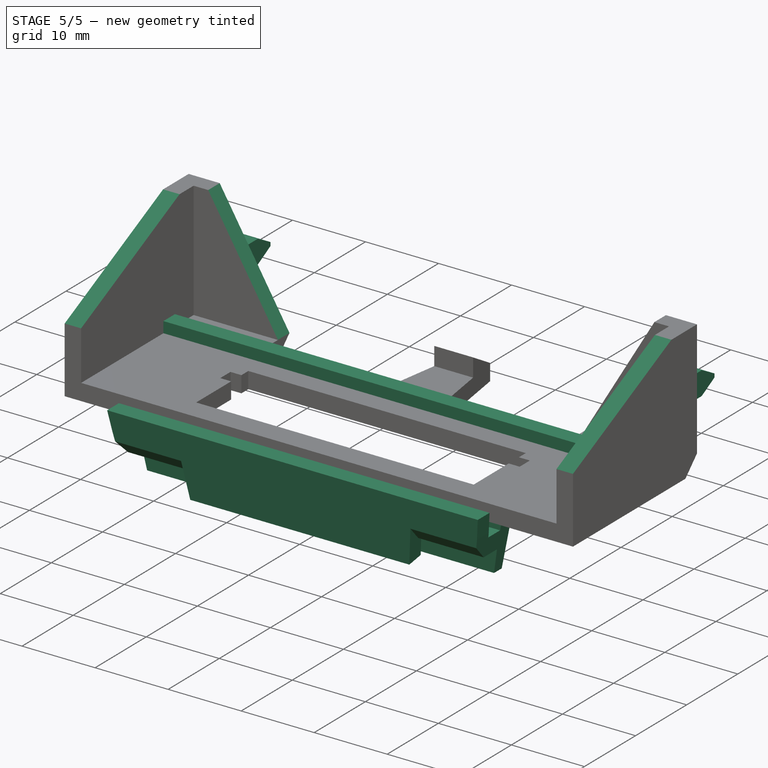
[diagram: stage 5 of 5 — iso view after this stage's code; geometry added in this stage tinted green]
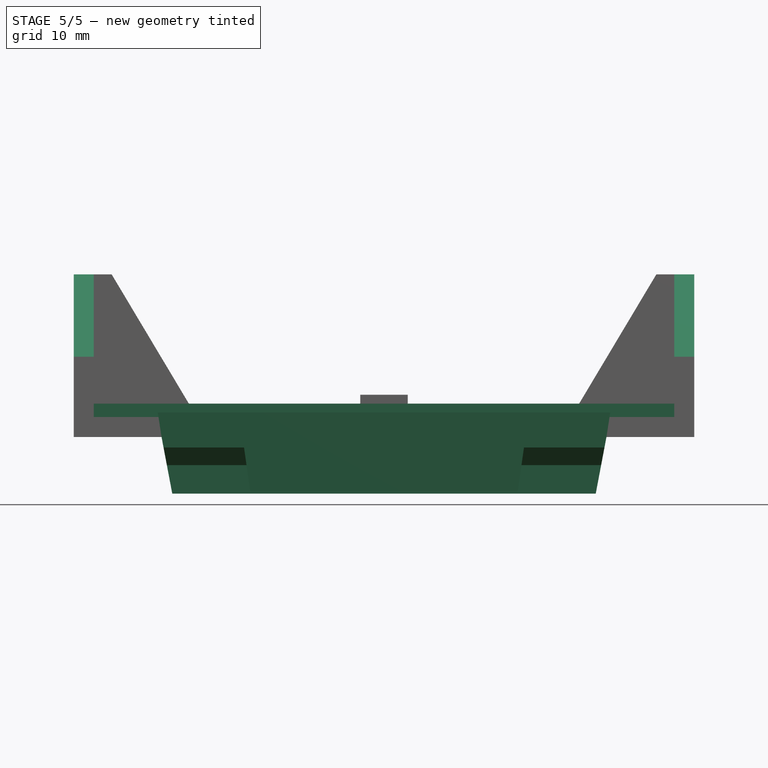
[diagram: stage 5 of 5 — front view after this stage's code; geometry added in this stage tinted green]
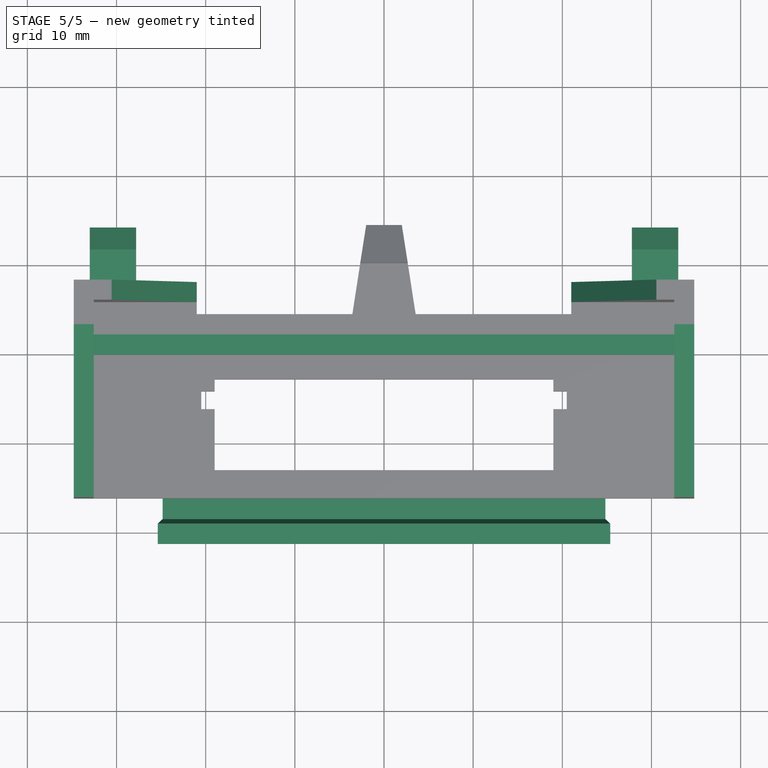
[diagram: stage 5 of 5 — top view after this stage's code; geometry added in this stage tinted green]
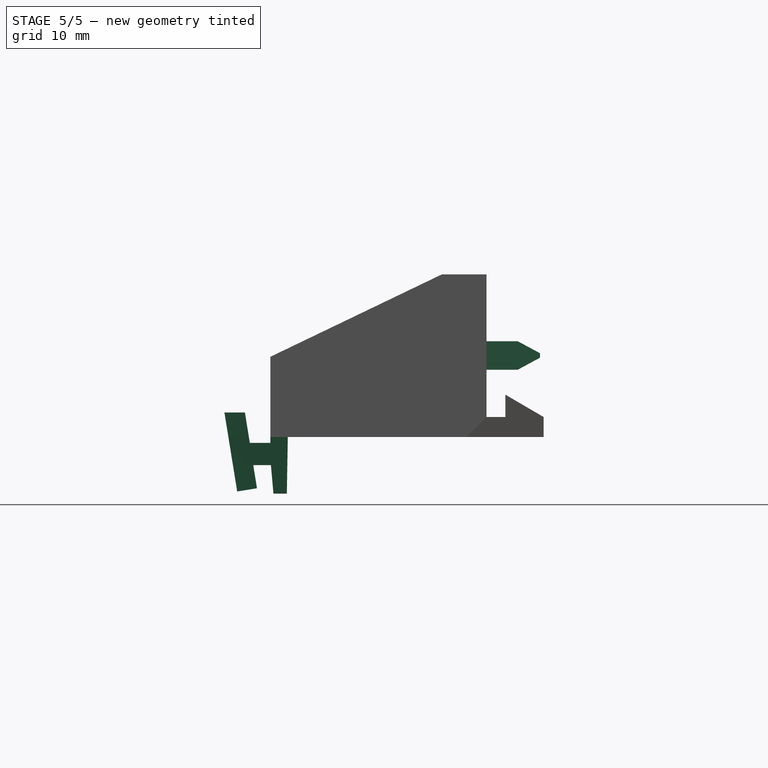
[diagram: stage 5 of 5 — right view after this stage's code; geometry added in this stage tinted green]
FEATURE [Sketcher::SketchObject] Sketch026
  ArcFitTolerance = 1e-06
  AttachmentSupport = -> [Pocket009]
  ExternalGeometry = -> [Pocket009]
  FullyConstrained = true
  MakeInternals = false
  MapMode = 5
  Placement = pos=(34.8,0,0) rot=(0.57735,0.57735,0.57735;2.0944rad)
  sketch-geometry (3):
    g0: LineSegment StartX=-6.25 StartY=49.7 StartZ=0 EndX=-6.25 EndY=40.45 EndZ=0
    g1: LineSegment StartX=-6.25 StartY=40.45 StartZ=0 EndX=13 EndY=49.7 EndZ=0
    g2: LineSegment StartX=13 StartY=49.7 StartZ=0 EndX=-6.25 EndY=49.7 EndZ=0
  constraints (8):
    c: Coincident(g-4,g0)
    c: Coincident(g0,g1)
    c: PointOnObject(g1,g-3)
    c: Coincident(g1,g2)
    c: Coincident(g2,g0)
    c: PointOnObject(g0,g-4)
    c: DistanceY(g-4,g0) = 9
    c: DistanceX(g1,g-3) = 5
FEATURE [PartDesign::Pocket] Pocket010
  BaseFeature = -> Pocket009
  Direction = (-1,0,0)
  Length = 5
  Length2 = 5
  Profile = -> Sketch026
  ReferenceAxis = -> Sketch026 [N_Axis]
  Suppressed = false
  Type = 1
FEATURE [Sketcher::SketchObject] Sketch027
  ArcFitTolerance = 1e-06
  AttachmentSupport = -> [Pocket010]
  ExternalGeometry = -> [Pocket010]
  FullyConstrained = true
  MakeInternals = false
  MapMode = 5
  Placement = pos=(0,18,0) rot=(0,0.707107,0.707107;3.14159rad)
  sketch-geometry (6):
    g0: LineSegment StartX=-30.55 StartY=49.7 StartZ=0 EndX=-21 EndY=33.7127 EndZ=0
    g1: LineSegment StartX=-21 StartY=33.7127 StartZ=0 EndX=-21 EndY=49.7 EndZ=0
    g2: LineSegment StartX=-21 StartY=49.7 StartZ=0 EndX=-30.55 EndY=49.7 EndZ=0
    g3: LineSegment StartX=30.55 StartY=49.7 StartZ=0 EndX=21 EndY=49.7 EndZ=0
    g4: LineSegment StartX=21 StartY=49.7 StartZ=0 EndX=21 EndY=33.7127 EndZ=0
    g5: LineSegment StartX=21 StartY=33.7127 StartZ=0 EndX=30.55 EndY=49.7 EndZ=0
  constraints (14):
    c: Coincident(g0,g-5)
    c: Coincident(g0,g1)
    c: Coincident(g1,g-5)
    c: Coincident(g1,g2)
    c: Coincident(g2,g0)
    c: Horizontal(g2)
    c: Coincident(g3,g-6)
    c: Horizontal(g3)
    c: Coincident(g3,g4)
    c: Coincident(g4,g-6)
    c: Coincident(g4,g5)
    c: Coincident(g5,g3)
    c: Equal(g3,g2)
    c: DistanceX(g-3,g0) = 4.25
FEATURE [PartDesign::Pocket] Pocket011
  BaseFeature = -> Pocket010
  Direction = (0,-1,2e-16)
  Length = 5
  Length2 = 5
  Profile = -> Sketch027
  ReferenceAxis = -> Sketch027 [N_Axis]
  Suppressed = false
  Type = 1
FEATURE [Sketcher::SketchObject] Sketch028
  ArcFitTolerance = 1e-06
  AttachmentSupport = -> [Pocket011]
  ExternalGeometry = -> [Pocket011]
  FullyConstrained = true
  MakeInternals = false
  MapMode = 5
  Placement = pos=(0,0,33.7) rot=(0,0,1;0rad)
  sketch-geometry (4):
    g0: LineSegment StartX=-32.55 StartY=12.1 StartZ=0 EndX=-32.55 EndY=9.85 EndZ=0
    g1: LineSegment StartX=-32.55 StartY=9.85 StartZ=0 EndX=32.55 EndY=9.85 EndZ=0
    g2: LineSegment StartX=32.55 StartY=9.85 StartZ=0 EndX=32.55 EndY=12.1 EndZ=0
    g3: LineSegment StartX=32.55 StartY=12.1 StartZ=0 EndX=-32.55 EndY=12.1 EndZ=0
  constraints (12):
    c: Coincident(g0,g1)
    c: Coincident(g1,g2)
    c: Coincident(g2,g3)
    c: Coincident(g3,g0)
    c: Vertical(g0)
    c: Vertical(g2)
    c: Horizontal(g1)
    c: Horizontal(g3)
    c: PointOnObject(g0,g-3)
    c: PointOnObject(g1,g-4)
    c: DistanceY(g0,g0) = 2.25
    c: DistanceY(g-3,g0) = 18.35
FEATURE [PartDesign::Pad] Pad021
  BaseFeature = -> Pocket011
  Direction = (0,0,1)
  Length = 1.5
  Length2 = 10
  Profile = -> Sketch028
  ReferenceAxis = -> Sketch028 [N_Axis]
  Suppressed = false
  Type = 0
FEATURE [PartDesign::Body] Body  label="Cartridge slot body"
  AllowCompound = false
  Group = -> [Sketch,Pad,Sketch001,Sketch002,Pad001,Pocket,Sketch003,Binder,Pad002,Pad003,Sketch004,Pocket001,Sketch005,Pad004,Sketch006,Pad005,Sketch007,Pocket002,Sketch008,Fillet,Sketch009,Binder001,Pad006,Pad007,Pad008,Sketch010,Pad009,Sketch011,Pocket003,Sketch012,Pocket004,Binder002,Pocket005,Sketch013,Pad010,Binder003,Pad011,Sketch014,Pocket006,Sketch015,Pad012,Sketch016,Pad013,Sketch017,Pocket007,+11 more]
  Origin = -> Origin001
  Tip = -> Pocket012
FEATURE [App::Part] Part  label="Cartridge slot"
  Group = -> [Body]
  Origin = -> Origin
FEATURE [Sketcher::SketchObject] Sketch030
  ArcFitTolerance = 1e-06
  AttachmentOffset = pos=(0,0,33) rot=(0,0,1;0rad)
  AttachmentSupport = -> [YZ_Plane003]
  ExternalGeometry = -> [Pad021]
  FullyConstrained = true
  MakeInternals = false
  MapMode = 5
  Placement = pos=(33,0,0) rot=(0.57735,0.57735,0.57735;2.0944rad)
  sketch-geometry (9):
    g0: LineSegment StartX=18 StartY=39 StartZ=0 EndX=21.5 EndY=39 EndZ=0
    g1: LineSegment StartX=21.5 StartY=39 StartZ=0 EndX=24 EndY=40.35 EndZ=0
    g2: LineSegment StartX=24 StartY=40.35 StartZ=0 EndX=24 EndY=40.85 EndZ=0
    g3: LineSegment StartX=24 StartY=40.85 StartZ=0 EndX=21.5 EndY=42.2 EndZ=0
    g4: LineSegment StartX=21.5 StartY=42.2 StartZ=0 EndX=18 EndY=42.2 EndZ=0
    g5: LineSegment StartX=18 StartY=42.2 StartZ=0 EndX=18 EndY=39 EndZ=0
    g6: GeomPoint X=18 Y=40.6 Z=0
    g7: GeomPoint X=24 Y=40.6 Z=0
    g8: LineSegment [constr] StartX=18 StartY=40.6 StartZ=0 EndX=24 EndY=40.6 EndZ=0
  constraints (21):
    c: PointOnObject(g0,g-3)
    c: Horizontal(g0)
    c: Coincident(g0,g1)
    c: Coincident(g1,g2)
    c: Vertical(g2)
    c: Coincident(g2,g3)
    c: Coincident(g3,g4)
    c: PointOnObject(g4,g-3)
    c: Horizontal(g4)
    c: Coincident(g4,g5)
    c: Coincident(g5,g0)
    c: Symmetric(g5,g5,g6)
    c: Symmetric(g2,g2,g7)
    c: Coincident(g8,g6)
    c: Coincident(g8,g7)
    c: Symmetric(g3,g0,g8)
    c: DistanceY(g0,g4) = 3.2
    c: DistanceX(g0,g1) = 2.5
    c: DistanceX(g0,g1) = 6
    c: DistanceY(g1,g2) = 0.5
    c: DistanceY(g4,g-3) = 7.5
FEATURE [PartDesign::Pad] Pad022
  BaseFeature = -> Pad021
  Direction = (1,0,0)
  Length = 5.2
  Length2 = 10
  Profile = -> Sketch030
  ReferenceAxis = -> Sketch030 [N_Axis]
  Reversed = true
  Suppressed = false
  Type = 0
FEATURE [PartDesign::SubShapeBinder] Binder007
  BindCopyOnChange = 0
  BindMode = 0
  ClaimChildren = false
  Context = -> Part001 [Body001.Binder007.]
  Fuse = false
  MakeFace = true
  OffsetFill = false
  OffsetIntersection = false
  OffsetJoinType = 0
  OffsetOpenResult = false
  PartialLoad = false
  Placement = pos=(-66,0,0) rot=(0,0,1;0rad)
  Relative = true
  Support = -> [Sketch030]
  _Version = 2
FEATURE [PartDesign::Pad] Pad023
  BaseFeature = -> Pad022
  Direction = (1,0,0)
  Length = 5.2
  Length2 = 10
  Profile = -> Binder007
  Suppressed = false
  Type = 0
FEATURE [Sketcher::SketchObject] Sketch031
  ArcFitTolerance = 1e-06
  AttachmentSupport = -> [YZ_Plane002]
  ExternalGeometry = -> [Pad023]
  FullyConstrained = true
  MakeInternals = false
  MapMode = 5
  Placement = pos=(0,0,0) rot=(0.57735,0.57735,0.57735;2.0944rad)
  sketch-geometry (11):
    g0: LineSegment StartX=-6.25 StartY=33.7 StartZ=0 EndX=-6.25 EndY=30.8 EndZ=0
    g1: LineSegment StartX=-6.25 StartY=30.8 StartZ=0 EndX=-8.55 EndY=30.8 EndZ=0
    g2: LineSegment StartX=-8.55 StartY=30.8 StartZ=0 EndX=-9.1 EndY=34.2 EndZ=0
    g3: LineSegment StartX=-9.1 StartY=34.2 StartZ=0 EndX=-11.4 EndY=34.2 EndZ=0
    g4: LineSegment StartX=-11.4 StartY=34.2 StartZ=0 EndX=-10.7659 EndY=30.2799 EndZ=0
    g5: LineSegment StartX=-10.7659 StartY=30.2799 StartZ=0 EndX=-8.78597 EndY=28.3 EndZ=0
    g6: LineSegment StartX=-8.78597 StartY=28.3 StartZ=0 EndX=-6.18597 EndY=28.3 EndZ=0
    g7: LineSegment StartX=-6.18597 StartY=28.3 StartZ=0 EndX=-5.9 EndY=25.1 EndZ=0
    g8: LineSegment StartX=-5.9 StartY=25.1 StartZ=0 EndX=-4.4 EndY=25.1 EndZ=0
    g9: LineSegment StartX=-4.4 StartY=25.1 StartZ=0 EndX=-4.25 EndY=33.7 EndZ=0
    g10: LineSegment StartX=-4.25 StartY=33.7 StartZ=0 EndX=-6.25 EndY=33.7 EndZ=0
  constraints (32):
    c: Coincident(g-3,g0)
    c: Vertical(g0)
    c: Coincident(g0,g1)
    c: Horizontal(g1)
    c: Coincident(g1,g2)
    c: Coincident(g2,g3)
    c: Horizontal(g3)
    c: Coincident(g3,g4)
    c: Coincident(g4,g5)
    c: Coincident(g5,g6)
    c: Horizontal(g6)
    c: Coincident(g6,g7)
    c: Coincident(g7,g8)
    c: Horizontal(g8)
    c: Coincident(g8,g9)
    c: PointOnObject(g9,g-3)
    c: Coincident(g9,g10)
    c: Coincident(g10,g0)
    c: DistanceY(g0,g2) = 0.5
    c: DistanceX(g3,g0) = 5.15
    c: DistanceX(g0,g9) = 2
    c: DistanceX(g1,g1) = 2.3
    c: DistanceX(g3,g2) = 2.3
    c: Parallel(g4,g2)
    c: Angle(g6,g5) = 2.35619
    c: Distance(g5) = 2.8
    c: DistanceY(g5,g1) = 2.5
    c: DistanceY(g7,g6) = 3.2
    c: DistanceX(g8,g8) = 1.5
    c: DistanceY(g8,g9) = 8.6
    c: DistanceX(g3,g8) = 7
    c: DistanceX(g5,g6) = 2.6
FEATURE [PartDesign::Pad] Pad024
  BaseFeature = -> Pad023
  Direction = (1,0,0)
  Length = 50.75
  Length2 = 10
  Midplane = true
  Profile = -> Sketch031
  ReferenceAxis = -> Sketch031 [N_Axis]
  Refine = true
  Suppressed = false
  Type = 0
FEATURE [Sketcher::SketchObject] Sketch032
  ArcFitTolerance = 1e-06
  AttachmentSupport = -> [Pad024]
  ExternalGeometry = -> [Pad024]
  FullyConstrained = true
  MakeInternals = false
  MapMode = 5
  Placement = pos=(0,-5.71802,-0.924974) rot=(1,0,0;1.73117rad)
  sketch-geometry (4):
    g0: LineSegment StartX=-15.7 StartY=31.6105 StartZ=0 EndX=15.7 EndY=31.6105 EndZ=0
    g1: LineSegment StartX=15.7 StartY=31.6105 StartZ=0 EndX=15 EndY=26.6105 EndZ=0
    g2: LineSegment StartX=15 StartY=26.6105 StartZ=0 EndX=-15 EndY=26.6105 EndZ=0
    g3: LineSegment StartX=-15 StartY=26.6105 StartZ=0 EndX=-15.7 EndY=31.6105 EndZ=0
  constraints (10):
    c: PointOnObject(g0,g-3)
    c: Coincident(g0,g1)
    c: Coincident(g1,g2)
    c: Coincident(g2,g3)
    c: Coincident(g3,g0)
    c: Symmetric(g0,g0,g-2)
    c: Symmetric(g1,g2,g-2)
    c: DistanceX(g0,g0) = 31.4
    c: DistanceX(g2,g2) = 30
    c: DistanceY(g1,g0) = 5
FEATURE [PartDesign::Pad] Pad025
  BaseFeature = -> Pad024
  Direction = (0,-0.987167,-0.159689)
  Length = 2.25
  Length2 = 10
  Profile = -> Sketch032
  ReferenceAxis = -> Sketch032 [N_Axis]
  Refine = true
  Reversed = true
  Suppressed = false
  Type = 0
FEATURE [Sketcher::SketchObject] Sketch033
  ArcFitTolerance = 1e-06
  AttachmentSupport = -> [XZ_Plane002]
  ExternalGeometry = -> [Pad025]
  FullyConstrained = true
  MakeInternals = false
  MapMode = 5
  Placement = pos=(0,0,0) rot=(1,0,0;1.5708rad)
  sketch-geometry (8):
    g0: LineSegment StartX=-25.375 StartY=31.45 StartZ=0 EndX=-24.95 EndY=31.45 EndZ=0
    g1: LineSegment StartX=-24.95 StartY=31.45 StartZ=0 EndX=-23.75 EndY=25.1 EndZ=0
    g2: LineSegment StartX=-23.75 StartY=25.1 StartZ=0 EndX=-25.375 EndY=25.1 EndZ=0
    g3: LineSegment StartX=-25.375 StartY=25.1 StartZ=0 EndX=-25.375 EndY=31.45 EndZ=0
    g4: LineSegment StartX=25.375 StartY=31.45 StartZ=0 EndX=24.95 EndY=31.45 EndZ=0
    g5: LineSegment StartX=24.95 StartY=31.45 StartZ=0 EndX=23.75 EndY=25.1 EndZ=0
    g6: LineSegment StartX=23.75 StartY=25.1 StartZ=0 EndX=25.375 EndY=25.1 EndZ=0
    g7: LineSegment StartX=25.375 StartY=25.1 StartZ=0 EndX=25.375 EndY=31.45 EndZ=0
  constraints (18):
    c: Coincident(g-3,g0)
    c: PointOnObject(g0,g-3)
    c: Coincident(g0,g1)
    c: PointOnObject(g1,g-4)
    c: Coincident(g1,g2)
    c: Coincident(g2,g-4)
    c: Coincident(g2,g3)
    c: Coincident(g3,g0)
    c: Coincident(g-3,g4)
    c: Coincident(g4,g5)
    c: Coincident(g5,g6)
    c: Coincident(g6,g-4)
    c: Coincident(g6,g7)
    c: Coincident(g7,g4)
    c: DistanceX(g1,g5) = 47.5
    c: DistanceX(g0,g4) = 49.9
    c: Symmetric(g0,g4,g-2)
    c: Symmetric(g1,g5,g-2)
FEATURE [PartDesign::Pocket] Pocket013
  BaseFeature = -> Pad025
  Direction = (0,1,-2e-16)
  Length = 5
  Length2 = 5
  Profile = -> Sketch033
  ReferenceAxis = -> Sketch033 [N_Axis]
  Refine = true
  Reversed = true
  Suppressed = false
  Type = 1
FEATURE [Sketcher::SketchObject] Sketch034
  ArcFitTolerance = 1e-06
  AttachmentSupport = -> [Pocket013]
  ExternalGeometry = -> [Pocket013]
  FullyConstrained = true
  MakeInternals = false
  MapMode = 5
  Placement = pos=(0,-5.71802,-0.924974) rot=(1,0,0;1.73117rad)
  sketch-geometry (6):
    g0: LineSegment StartX=-25.375 StartY=35.5816 StartZ=0 EndX=-24.95 EndY=32.7958 EndZ=0
    g1: LineSegment StartX=-24.95 StartY=32.7958 StartZ=0 EndX=-25.375 EndY=32.7958 EndZ=0
    g2: LineSegment StartX=-25.375 StartY=32.7958 StartZ=0 EndX=-25.375 EndY=35.5816 EndZ=0
    g3: LineSegment StartX=25.375 StartY=35.5816 StartZ=0 EndX=24.95 EndY=32.7958 EndZ=0
    g4: LineSegment StartX=24.95 StartY=32.7958 StartZ=0 EndX=25.375 EndY=32.7958 EndZ=0
    g5: LineSegment StartX=25.375 StartY=32.7958 StartZ=0 EndX=25.375 EndY=35.5816 EndZ=0
  constraints (12):
    c: Coincident(g-3,g0)
    c: Coincident(g0,g-4)
    c: Coincident(g0,g1)
    c: Coincident(g1,g-4)
    c: Coincident(g1,g2)
    c: Coincident(g2,g0)
    c: Coincident(g-3,g3)
    c: Coincident(g3,g-5)
    c: Coincident(g3,g4)
    c: Coincident(g4,g-5)
    c: Coincident(g4,g5)
    c: Coincident(g5,g3)
FEATURE [PartDesign::Pocket] Pocket014
  BaseFeature = -> Pocket013
  Direction = (0,-1,0)
  Length = 0
  Length2 = 5
  Profile = -> Sketch034
  ReferenceAxis = -> Pocket013 [Edge55]
  Refine = true
  Suppressed = false
  Type = 3
  UpToFace = -> Pocket013 [Face13]
FEATURE [PartDesign::Body] Body001  label="Connector holder body"
  AllowCompound = false
  Group = -> [Binder004,Sketch022,Pad018,Sketch023,Pad019,Sketch024,Pad020,Sketch025,Pocket008,Binder005,Pocket009,Sketch026,Pocket010,Sketch027,Pocket011,Sketch028,Pad021,Binder006,Sketch030,Pad022,Binder007,Pad023,Sketch031,Pad024,Sketch032,Pad025,Sketch033,Pocket013,Sketch034,Pocket014]
  Origin = -> Origin003
  Tip = -> Pocket014
FEATURE [App::Part] Part001  label="ConnectorHolder"
  Group = -> [Body001]
  Origin = -> Origin002
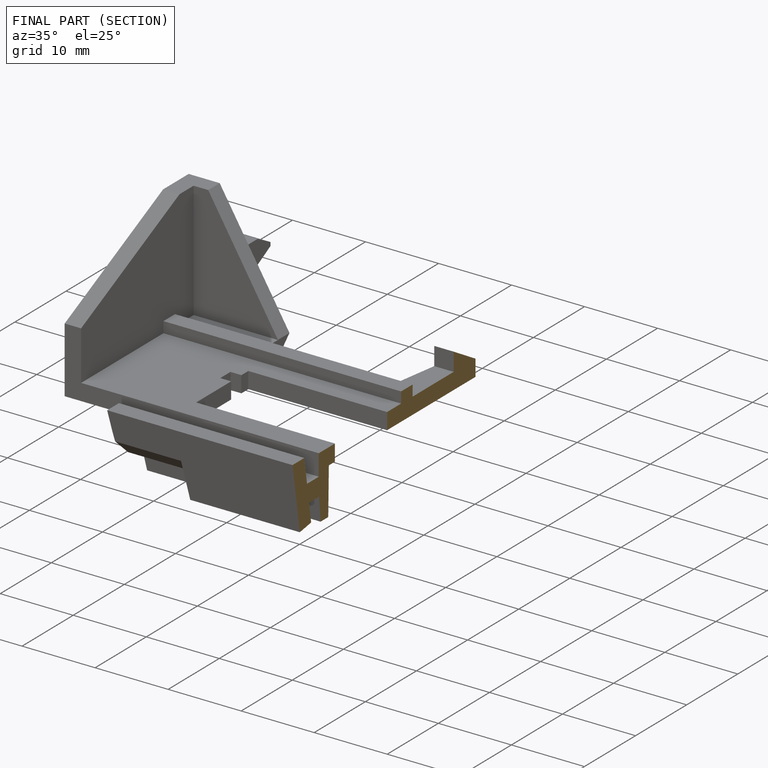
[diagram: finished part — half-section view (interior)]
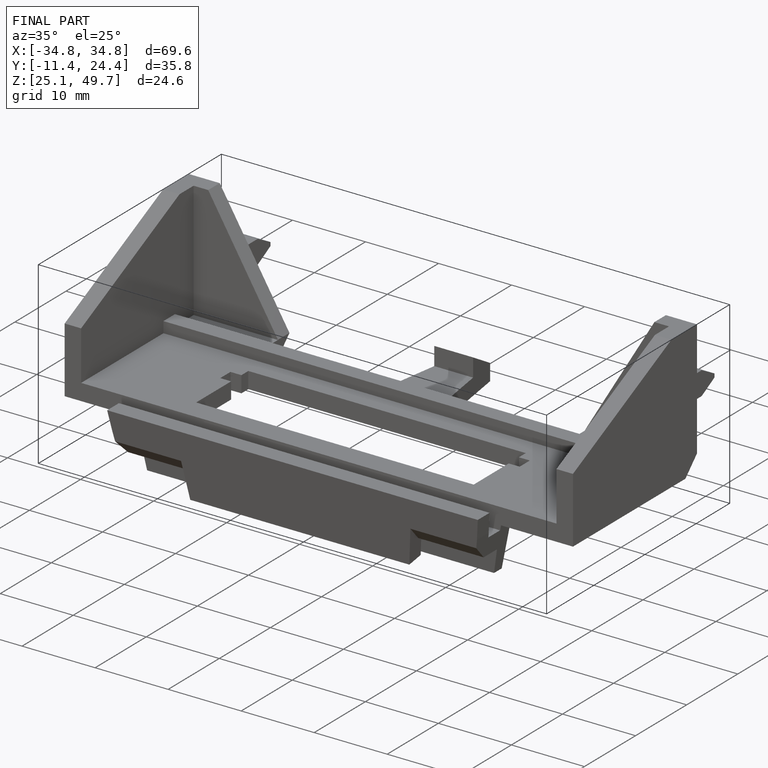
[diagram: finished part — iso view with bounding-box wireframe]
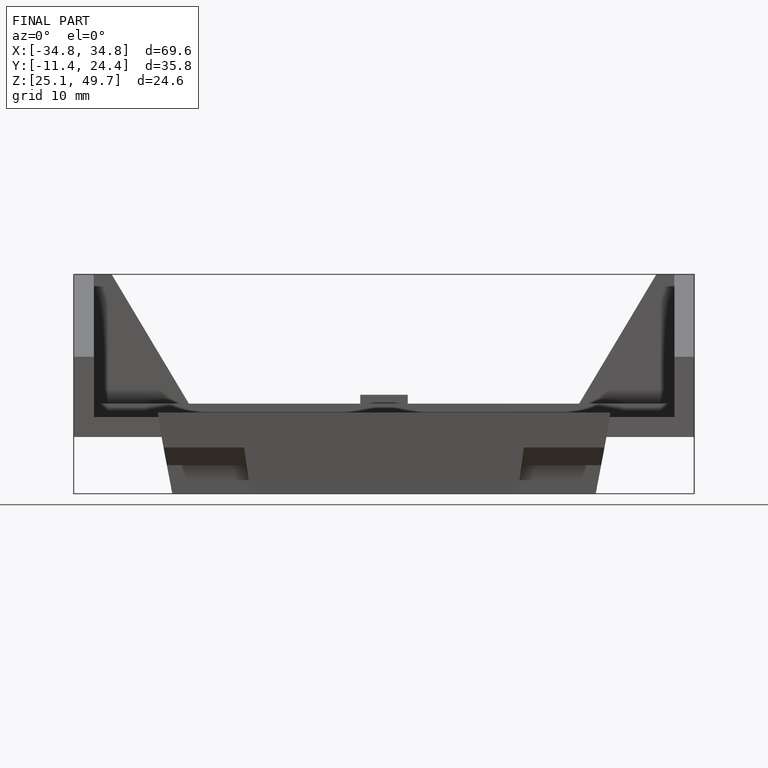
[diagram: finished part — front view with bounding-box wireframe]
